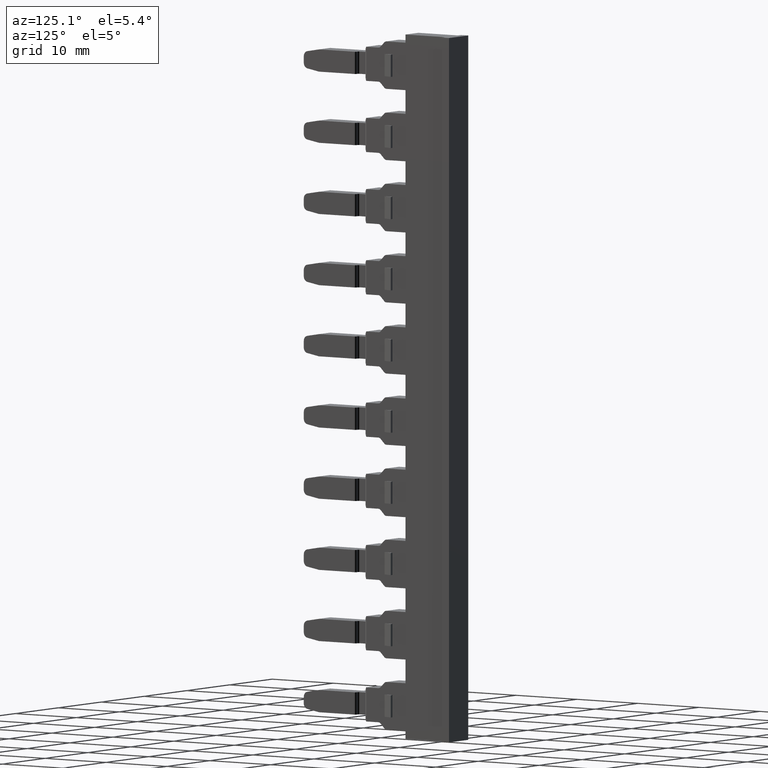
[diagram: clean part render]
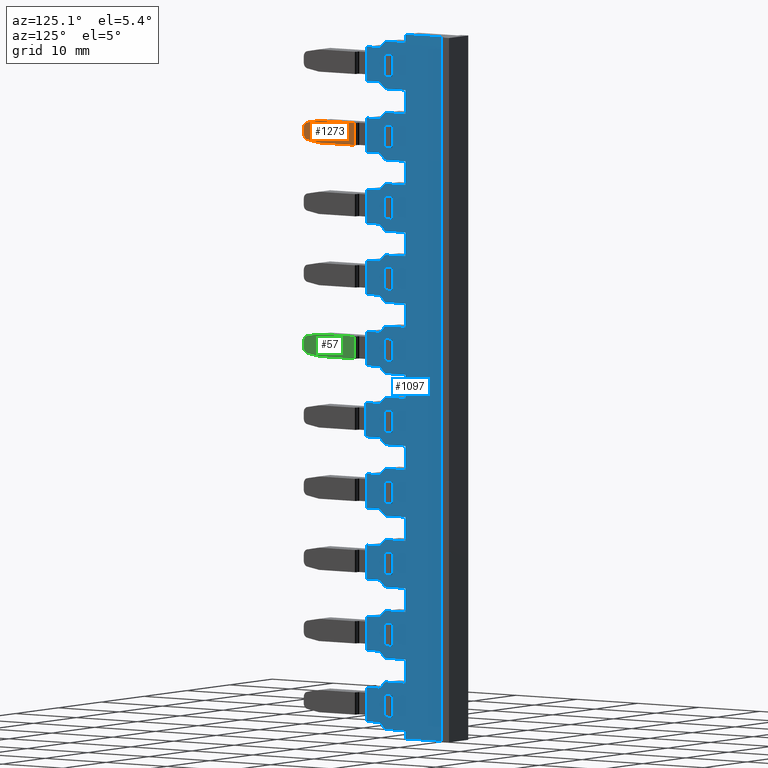
[diagram: same view with three faces highlighted in distinct colors, each labeled with its STEP entity id]
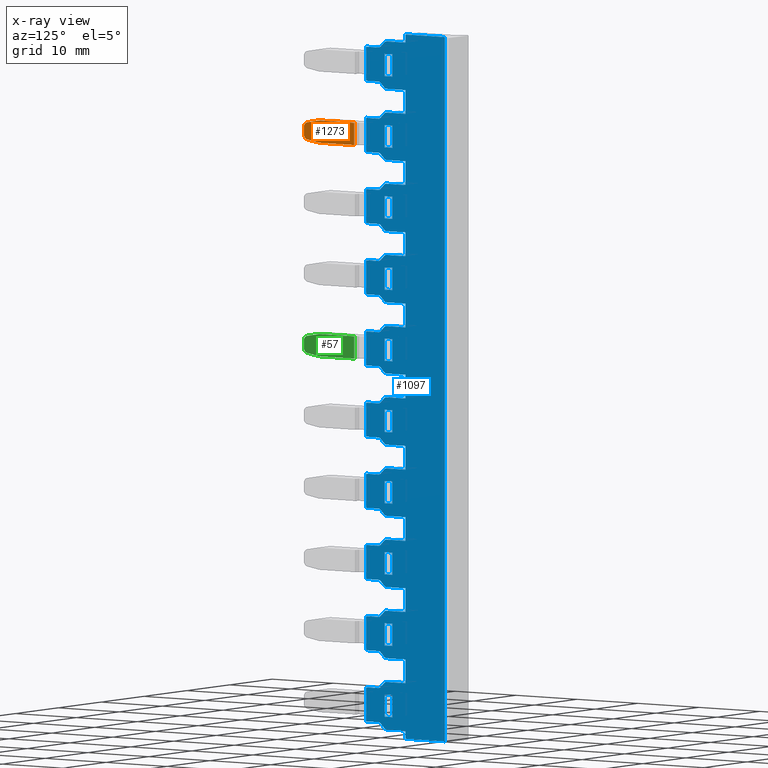
[diagram: x-ray of the same camera — body ghosted, the three highlighted faces saturated]
A machine part, auxiliary view with three faces highlighted in distinct colors.
The next image is the same camera in x-ray (body ghosted, the three faces saturated) — at least one of them is partly hidden behind the body in this view.
Their STEP definitions:

[orange] entity #1273 — the highlighted planar face has unit normal (-1, 0, -0).
#1273 = ADVANCED_FACE ( 'NONE', ( #8980 ), #8971, .F. ) ;
#1841 = CARTESIAN_POINT ( 'NONE',  ( 112.0207181399665800, 226.5069065328586100, 41.97844942780037800 ) ) ;
#1843 = DIRECTION ( 'NONE',  ( 1.982541115402047700E-014, -1.000000000000000000, 0.0000000000000000000 ) ) ;
#1844 = CARTESIAN_POINT ( 'NONE',  ( 112.0207181399668500, 238.6101602475987400, 43.00663662139601200 ) ) ;
#1864 = DIRECTION ( 'NONE',  ( -1.000000000000000000, -2.643655590711540000E-014, -7.193572994224081300E-015 ) ) ;
#1876 = LINE ( 'NONE', #1844, #10332 ) ;
#1878 = DIRECTION ( 'NONE',  ( -0.0000000000000000000, -1.000000000000000000, -2.594839121907101700E-014 ) ) ;
#2674 = ORIENTED_EDGE ( 'NONE', *, *, #4417, .F. ) ;
#2684 = ORIENTED_EDGE ( 'NONE', *, *, #4363, .F. ) ;
#2701 = ORIENTED_EDGE ( 'NONE', *, *, #4407, .T. ) ;
#2703 = ORIENTED_EDGE ( 'NONE', *, *, #4369, .T. ) ;
#2704 = ORIENTED_EDGE ( 'NONE', *, *, #4432, .T. ) ;
#4363 = EDGE_CURVE ( 'NONE', #11673, #11609, #10331, .T. ) ;
#4369 = EDGE_CURVE ( 'NONE', #11684, #11690, #1876, .T. ) ;
#4388 = EDGE_CURVE ( 'NONE', #11673, #11678, #4648, .T. ) ;
#4401 = EDGE_CURVE ( 'NONE', #11615, #11678, #10395, .T. ) ;
#4402 = EDGE_CURVE ( 'NONE', #11615, #11638, #4691, .T. ) ;
#4407 = EDGE_CURVE ( 'NONE', #11638, #11686, #4672, .T. ) ;
#4417 = EDGE_CURVE ( 'NONE', #11684, #11686, #4745, .T. ) ;
#4432 = EDGE_CURVE ( 'NONE', #11690, #11609, #4764, .T. ) ;
#4478 = ORIENTED_EDGE ( 'NONE', *, *, #4388, .T. ) ;
#4492 = ORIENTED_EDGE ( 'NONE', *, *, #4402, .T. ) ;
#4507 = ORIENTED_EDGE ( 'NONE', *, *, #4401, .F. ) ;
#4648 = LINE ( 'NONE', #4663, #10318 ) ;
#4656 = DIRECTION ( 'NONE',  ( 1.027851262480033000E-041, -3.887992316742691900E-028, -1.000000000000000000 ) ) ;
#4663 = CARTESIAN_POINT ( 'NONE',  ( 112.0207181399665900, 225.8069065328585900, 41.97844942780043500 ) ) ;
#4668 = CARTESIAN_POINT ( 'NONE',  ( 112.0207181399666800, 238.6101602475987400, 40.00663662139589900 ) ) ;
#4672 = LINE ( 'NONE', #4668, #10380 ) ;
#4679 = CARTESIAN_POINT ( 'NONE',  ( 112.0207181399666000, 226.5069065328586100, 41.03482381499119200 ) ) ;
#4680 = DIRECTION ( 'NONE',  ( -1.000000000000000000, -2.643655590711540000E-014, -7.193572994224081300E-015 ) ) ;
#4691 = LINE ( 'NONE', #4692, #10372 ) ;
#4692 = CARTESIAN_POINT ( 'NONE',  ( 112.0207181399666200, 228.3069065328586200, 40.00663662139595500 ) ) ;
#4700 = DIRECTION ( 'NONE',  ( -0.0000000000000000000, 0.9848077530122110200, -0.1736481776669129600 ) ) ;
#4707 = DIRECTION ( 'NONE',  ( 1.982541115402047700E-014, -1.000000000000000000, 0.0000000000000000000 ) ) ;
#4713 = DIRECTION ( 'NONE',  ( -0.0000000000000000000, 1.000000000000000000, -1.504573015594194000E-014 ) ) ;
#4716 = DIRECTION ( 'NONE',  ( 7.193572994225524900E-015, -5.441398086515932400E-029, -1.000000000000000000 ) ) ;
#4732 = CARTESIAN_POINT ( 'NONE',  ( 112.0207181399668500, 234.0815789080009200, 43.00663662139594100 ) ) ;
#4745 = LINE ( 'NONE', #4732, #10416 ) ;
#4761 = DIRECTION ( 'NONE',  ( -0.0000000000000000000, -0.9848077530121975800, -0.1736481776669893700 ) ) ;
#4764 = LINE ( 'NONE', #4793, #10396 ) ;
#4793 = CARTESIAN_POINT ( 'NONE',  ( 112.0207181399666600, 228.3069065328599300, 43.00663662139599100 ) ) ;
#5414 = CARTESIAN_POINT ( 'NONE',  ( 112.0207181399666200, 226.3853528084916000, 40.34545838788266500 ) ) ;
#5448 = CARTESIAN_POINT ( 'NONE',  ( 112.0207181399666600, 228.3069065328583600, 40.00663662139602600 ) ) ;
#5471 = CARTESIAN_POINT ( 'NONE',  ( 112.0207181399666200, 226.3853528084917500, 42.66781485490893300 ) ) ;
#5484 = CARTESIAN_POINT ( 'NONE',  ( 112.0207181399668500, 234.0815789080009200, 43.00663662139592000 ) ) ;
#5507 = CARTESIAN_POINT ( 'NONE',  ( 112.0207181399665900, 225.8069065328585900, 41.97844942780034900 ) ) ;
#5514 = CARTESIAN_POINT ( 'NONE',  ( 112.0207181399666000, 225.8069065328585900, 41.03482381499118500 ) ) ;
#5523 = CARTESIAN_POINT ( 'NONE',  ( 112.0207181399667900, 228.3069065328599000, 43.00663662139583500 ) ) ;
#5531 = CARTESIAN_POINT ( 'NONE',  ( 112.0207181399667700, 234.0815789080009200, 40.00663662139600500 ) ) ;
#8969 = DIRECTION ( 'NONE',  ( -3.142629004551419200E-014, -1.000000000000000000, 0.0000000000000000000 ) ) ;
#8971 = PLANE ( 'NONE',  #9837 ) ;
#8973 = CARTESIAN_POINT ( 'NONE',  ( 112.0207181399667900, 234.7827890380837600, 54.47574725072586000 ) ) ;
#8980 = FACE_OUTER_BOUND ( 'NONE', #10851, .T. ) ;
#9003 = DIRECTION ( 'NONE',  ( -1.000000000000000000, 3.142629004551419200E-014, -7.193572994225524900E-015 ) ) ;
#9837 = AXIS2_PLACEMENT_3D ( 'NONE', #8973, #9003, #8969 ) ;
#10318 = VECTOR ( 'NONE', #4656, 1000.000000000000000 ) ;
#10331 = CIRCLE ( 'NONE', #10339, 0.7000000000000061700 ) ;
#10332 = VECTOR ( 'NONE', #1878, 1000.000000000000000 ) ;
#10339 = AXIS2_PLACEMENT_3D ( 'NONE', #1841, #1864, #1843 ) ;
#10372 = VECTOR ( 'NONE', #4700, 1000.000000000000200 ) ;
#10374 = AXIS2_PLACEMENT_3D ( 'NONE', #4679, #4680, #4707 ) ;
#10380 = VECTOR ( 'NONE', #4713, 1000.000000000000000 ) ;
#10395 = CIRCLE ( 'NONE', #10374, 0.7000000000000061700 ) ;
#10396 = VECTOR ( 'NONE', #4761, 1000.000000000000100 ) ;
#10416 = VECTOR ( 'NONE', #4716, 1000.000000000000000 ) ;
#10851 = EDGE_LOOP ( 'NONE', ( #2674, #2703, #2704, #2684, #4478, #4507, #4492, #2701 ) ) ;
#11609 = VERTEX_POINT ( 'NONE', #5471 ) ;
#11615 = VERTEX_POINT ( 'NONE', #5414 ) ;
#11638 = VERTEX_POINT ( 'NONE', #5448 ) ;
#11673 = VERTEX_POINT ( 'NONE', #5507 ) ;
#11678 = VERTEX_POINT ( 'NONE', #5514 ) ;
#11684 = VERTEX_POINT ( 'NONE', #5484 ) ;
#11686 = VERTEX_POINT ( 'NONE', #5531 ) ;
#11690 = VERTEX_POINT ( 'NONE', #5523 ) ;

[blue] entity #1097 — the highlighted planar face has unit normal (1, 0, 0).
#1017 = EDGE_CURVE ( 'NONE', #10634, #10618, #11005, .T. ) ;
#1031 = EDGE_CURVE ( 'NONE', #10603, #10622, #11068, .T. ) ;
#1034 = EDGE_CURVE ( 'NONE', #10602, #10583, #11081, .T. ) ;
#1042 = EDGE_CURVE ( 'NONE', #10589, #10631, #11106, .T. ) ;
#1043 = EDGE_CURVE ( 'NONE', #10608, #10619, #11060, .T. ) ;
#1044 = EDGE_CURVE ( 'NONE', #10617, #10635, #11075, .T. ) ;
#1064 = EDGE_CURVE ( 'NONE', #10589, #10611, #11167, .T. ) ;
#1070 = EDGE_CURVE ( 'NONE', #10596, #10613, #11181, .T. ) ;
#1071 = EDGE_CURVE ( 'NONE', #10663, #10629, #11157, .T. ) ;
#1072 = EDGE_CURVE ( 'NONE', #10650, #10591, #7636, .T. ) ;
#1073 = EDGE_CURVE ( 'NONE', #10584, #10600, #11159, .T. ) ;
#1074 = EDGE_CURVE ( 'NONE', #10614, #10620, #11162, .T. ) ;
#1076 = EDGE_CURVE ( 'NONE', #10633, #10595, #11184, .T. ) ;
#1077 = EDGE_CURVE ( 'NONE', #10608, #10585, #7652, .T. ) ;
#1079 = EDGE_CURVE ( 'NONE', #10640, #10631, #11204, .T. ) ;
#1080 = EDGE_CURVE ( 'NONE', #10649, #10701, #11206, .T. ) ;
#1081 = EDGE_CURVE ( 'NONE', #10584, #10606, #7657, .T. ) ;
#1082 = EDGE_CURVE ( 'NONE', #10630, #10613, #7991, .T. ) ;
#1083 = EDGE_CURVE ( 'NONE', #10692, #10645, #11237, .T. ) ;
#1087 = EDGE_CURVE ( 'NONE', #10650, #10682, #11201, .T. ) ;
#1089 = EDGE_CURVE ( 'NONE', #10654, #10679, #11227, .T. ) ;
#1091 = EDGE_CURVE ( 'NONE', #10692, #10629, #11248, .T. ) ;
#1092 = EDGE_CURVE ( 'NONE', #10699, #10591, #11295, .T. ) ;
#1094 = EDGE_CURVE ( 'NONE', #10607, #10668, #7578, .T. ) ;
#1096 = EDGE_CURVE ( 'NONE', #10630, #10616, #11284, .T. ) ;
#1097 = ADVANCED_FACE ( 'NONE', ( #11253, #11264, #11298, #11266, #11272, #11252, #11271, #11254, #11293, #11299, #11275 ), #11279, .T. ) ;
#1099 = EDGE_CURVE ( 'NONE', #10620, #10609, #11289, .T. ) ;
#1101 = EDGE_CURVE ( 'NONE', #10615, #10621, #11257, .T. ) ;
#1104 = EDGE_CURVE ( 'NONE', #10612, #10598, #11315, .T. ) ;
#1105 = EDGE_CURVE ( 'NONE', #10579, #10626, #11316, .T. ) ;
#1107 = EDGE_CURVE ( 'NONE', #10649, #10645, #9752, .T. ) ;
#1108 = EDGE_CURVE ( 'NONE', #10654, #10701, #9748, .T. ) ;
#1109 = EDGE_CURVE ( 'NONE', #10586, #10667, #9768, .T. ) ;
#1110 = EDGE_CURVE ( 'NONE', #10607, #10667, #11325, .T. ) ;
#1112 = EDGE_CURVE ( 'NONE', #10593, #10609, #9789, .T. ) ;
#1113 = EDGE_CURVE ( 'NONE', #10610, #10595, #9755, .T. ) ;
#1114 = EDGE_CURVE ( 'NONE', #10636, #10638, #11365, .T. ) ;
#1115 = EDGE_CURVE ( 'NONE', #10593, #10606, #11368, .T. ) ;
#1117 = EDGE_CURVE ( 'NONE', #10583, #10598, #11353, .T. ) ;
#1118 = EDGE_CURVE ( 'NONE', #10626, #10585, #11355, .T. ) ;
#1119 = EDGE_CURVE ( 'NONE', #10633, #10611, #9792, .T. ) ;
#1122 = EDGE_CURVE ( 'NONE', #10639, #10579, #11393, .T. ) ;
#1124 = EDGE_CURVE ( 'NONE', #10601, #10668, #11364, .T. ) ;
#1125 = EDGE_CURVE ( 'NONE', #10663, #10682, #9756, .T. ) ;
#1126 = EDGE_CURVE ( 'NONE', #10639, #10616, #9754, .T. ) ;
#1127 = EDGE_CURVE ( 'NONE', #10596, #10600, #11348, .T. ) ;
#1128 = EDGE_CURVE ( 'NONE', #10586, #10614, #11405, .T. ) ;
#1129 = EDGE_CURVE ( 'NONE', #10640, #10619, #9796, .T. ) ;
#1130 = EDGE_CURVE ( 'NONE', #10601, #10679, #11442, .T. ) ;
#1132 = EDGE_CURVE ( 'NONE', #10610, #10602, #11429, .T. ) ;
#1854 = CARTESIAN_POINT ( 'NONE',  ( 112.2279176201154100, 239.5101602475984400, 15.90663662139566600 ) ) ;
#1872 = CARTESIAN_POINT ( 'NONE',  ( 112.2279176201156500, 236.1815789079991800, -8.793363378604263800 ) ) ;
#2310 = CARTESIAN_POINT ( 'NONE',  ( 112.2279176201154300, 239.1566068570054700, 15.76019001198886800 ) ) ;
#2712 = ORIENTED_EDGE ( 'NONE', *, *, #4061, .F. ) ;
#2713 = ORIENTED_EDGE ( 'NONE', *, *, #4101, .F. ) ;
#2714 = ORIENTED_EDGE ( 'NONE', *, *, #4033, .T. ) ;
#2716 = ORIENTED_EDGE ( 'NONE', *, *, #4065, .T. ) ;
#2718 = ORIENTED_EDGE ( 'NONE', *, *, #4072, .F. ) ;
#2722 = ORIENTED_EDGE ( 'NONE', *, *, #4098, .T. ) ;
#2724 = ORIENTED_EDGE ( 'NONE', *, *, #4006, .F. ) ;
#2729 = ORIENTED_EDGE ( 'NONE', *, *, #4047, .F. ) ;
#2735 = ORIENTED_EDGE ( 'NONE', *, *, #4054, .T. ) ;
#2737 = ORIENTED_EDGE ( 'NONE', *, *, #4080, .F. ) ;
#2738 = ORIENTED_EDGE ( 'NONE', *, *, #4118, .F. ) ;
#2744 = ORIENTED_EDGE ( 'NONE', *, *, #4056, .F. ) ;
#2745 = ORIENTED_EDGE ( 'NONE', *, *, #4108, .F. ) ;
#2746 = ORIENTED_EDGE ( 'NONE', *, *, #4104, .F. ) ;
#2748 = ORIENTED_EDGE ( 'NONE', *, *, #4005, .T. ) ;
#2749 = ORIENTED_EDGE ( 'NONE', *, *, #4053, .T. ) ;
#2750 = ORIENTED_EDGE ( 'NONE', *, *, #4124, .T. ) ;
#2751 = ORIENTED_EDGE ( 'NONE', *, *, #4055, .T. ) ;
#2755 = ORIENTED_EDGE ( 'NONE', *, *, #4070, .F. ) ;
#2762 = ORIENTED_EDGE ( 'NONE', *, *, #4091, .F. ) ;
#2763 = ORIENTED_EDGE ( 'NONE', *, *, #4046, .T. ) ;
#2765 = ORIENTED_EDGE ( 'NONE', *, *, #4043, .F. ) ;
#2766 = ORIENTED_EDGE ( 'NONE', *, *, #4063, .T. ) ;
#2767 = ORIENTED_EDGE ( 'NONE', *, *, #4122, .T. ) ;
#2768 = ORIENTED_EDGE ( 'NONE', *, *, #4066, .T. ) ;
#2769 = ORIENTED_EDGE ( 'NONE', *, *, #4092, .T. ) ;
#2770 = ORIENTED_EDGE ( 'NONE', *, *, #4095, .T. ) ;
#2771 = ORIENTED_EDGE ( 'NONE', *, *, #4067, .F. ) ;
#2772 = ORIENTED_EDGE ( 'NONE', *, *, #4102, .T. ) ;
#2798 = ORIENTED_EDGE ( 'NONE', *, *, #4071, .F. ) ;
#3981 = EDGE_CURVE ( 'NONE', #10670, #10674, #9750, .T. ) ;
#3982 = EDGE_CURVE ( 'NONE', #10603, #10689, #9012, .T. ) ;
#3983 = EDGE_CURVE ( 'NONE', #10634, #10592, #9050, .T. ) ;
#3984 = EDGE_CURVE ( 'NONE', #10698, #10702, #9035, .T. ) ;
#3985 = EDGE_CURVE ( 'NONE', #10577, #10635, #9045, .T. ) ;
#3986 = EDGE_CURVE ( 'NONE', #10590, #10658, #9029, .T. ) ;
#3987 = EDGE_CURVE ( 'NONE', #10580, #10671, #9058, .T. ) ;
#3988 = EDGE_CURVE ( 'NONE', #10669, #10618, #9052, .T. ) ;
#3989 = EDGE_CURVE ( 'NONE', #10684, #10697, #9051, .T. ) ;
#3990 = EDGE_CURVE ( 'NONE', #10691, #10658, #9055, .T. ) ;
#3991 = EDGE_CURVE ( 'NONE', #10659, #10678, #9056, .T. ) ;
#3992 = EDGE_CURVE ( 'NONE', #10681, #10638, #9048, .T. ) ;
#3993 = EDGE_CURVE ( 'NONE', #10700, #10664, #9879, .T. ) ;
#3994 = EDGE_CURVE ( 'NONE', #10672, #10666, #9890, .T. ) ;
#3995 = EDGE_CURVE ( 'NONE', #10604, #10690, #9020, .T. ) ;
#3996 = EDGE_CURVE ( 'NONE', #10691, #10671, #9876, .T. ) ;
#3997 = EDGE_CURVE ( 'NONE', #10659, #10683, #9921, .T. ) ;
#3998 = EDGE_CURVE ( 'NONE', #10580, #10680, #9895, .T. ) ;
#3999 = EDGE_CURVE ( 'NONE', #10675, #10689, #9923, .T. ) ;
#4000 = EDGE_CURVE ( 'NONE', #10587, #10688, #9064, .T. ) ;
#4001 = EDGE_CURVE ( 'NONE', #10577, #10697, #9875, .T. ) ;
#4002 = EDGE_CURVE ( 'NONE', #10662, #10746, #9040, .T. ) ;
#4003 = EDGE_CURVE ( 'NONE', #10685, #10666, #9091, .T. ) ;
#4004 = EDGE_CURVE ( 'NONE', #10743, #10711, #9907, .T. ) ;
#4005 = EDGE_CURVE ( 'NONE', #10756, #10723, #9094, .T. ) ;
#4006 = EDGE_CURVE ( 'NONE', #10720, #10716, #9085, .T. ) ;
#4007 = EDGE_CURVE ( 'NONE', #10651, #10751, #9915, .T. ) ;
#4008 = EDGE_CURVE ( 'NONE', #10652, #10581, #9084, .T. ) ;
#4009 = EDGE_CURVE ( 'NONE', #10615, #10680, #9100, .T. ) ;
#4010 = EDGE_CURVE ( 'NONE', #10669, #10665, #9898, .T. ) ;
#4011 = EDGE_CURVE ( 'NONE', #10590, #10694, #9103, .T. ) ;
#4012 = EDGE_CURVE ( 'NONE', #10676, #10715, #9916, .T. ) ;
#4013 = EDGE_CURVE ( 'NONE', #10670, #10702, #9074, .T. ) ;
#4014 = EDGE_CURVE ( 'NONE', #10582, #10660, #9918, .T. ) ;
#4015 = EDGE_CURVE ( 'NONE', #10627, #10621, #9142, .T. ) ;
#4016 = EDGE_CURVE ( 'NONE', #10643, #10674, #9121, .T. ) ;
#4017 = EDGE_CURVE ( 'NONE', #10681, #10581, #9899, .T. ) ;
#4018 = EDGE_CURVE ( 'NONE', #10677, #10642, #9131, .T. ) ;
#4019 = EDGE_CURVE ( 'NONE', #10677, #10748, #9909, .T. ) ;
#4020 = EDGE_CURVE ( 'NONE', #10644, #10686, #9110, .T. ) ;
#4021 = EDGE_CURVE ( 'NONE', #10587, #10657, #9878, .T. ) ;
#4022 = EDGE_CURVE ( 'NONE', #10764, #10727, #9148, .T. ) ;
#4023 = EDGE_CURVE ( 'NONE', #10648, #10748, #9138, .T. ) ;
#4024 = EDGE_CURVE ( 'NONE', #10617, #10578, #9113, .T. ) ;
#4025 = EDGE_CURVE ( 'NONE', #10676, #10767, #9116, .T. ) ;
#4026 = EDGE_CURVE ( 'NONE', #10706, #10707, #9963, .T. ) ;
#4027 = EDGE_CURVE ( 'NONE', #10643, #10592, #9978, .T. ) ;
#4028 = EDGE_CURVE ( 'NONE', #10724, #10715, #9153, .T. ) ;
#4029 = EDGE_CURVE ( 'NONE', #10685, #10578, #9949, .T. ) ;
#4030 = EDGE_CURVE ( 'NONE', #10652, #10656, #9972, .T. ) ;
#4031 = EDGE_CURVE ( 'NONE', #10612, #10736, #9173, .T. ) ;
#4032 = EDGE_CURVE ( 'NONE', #10627, #10642, #9955, .T. ) ;
#4033 = EDGE_CURVE ( 'NONE', #10722, #10714, #9168, .T. ) ;
#4034 = EDGE_CURVE ( 'NONE', #10758, #10730, #9160, .T. ) ;
#4035 = EDGE_CURVE ( 'NONE', #10743, #10695, #9171, .T. ) ;
#4036 = EDGE_CURVE ( 'NONE', #10700, #10646, #8601, .T. ) ;
#4037 = EDGE_CURVE ( 'NONE', #10582, #10665, #8616, .T. ) ;
#4038 = EDGE_CURVE ( 'NONE', #10693, #10690, #8599, .T. ) ;
#4039 = EDGE_CURVE ( 'NONE', #10699, #10678, #8595, .T. ) ;
#4040 = EDGE_CURVE ( 'NONE', #10684, #10694, #9980, .T. ) ;
#4041 = EDGE_CURVE ( 'NONE', #10604, #10657, #9162, .T. ) ;
#4042 = EDGE_CURVE ( 'NONE', #10693, #10646, #9979, .T. ) ;
#4043 = EDGE_CURVE ( 'NONE', #10761, #10762, #8573, .T. ) ;
#4044 = EDGE_CURVE ( 'NONE', #10647, #10725, #8575, .T. ) ;
#4045 = EDGE_CURVE ( 'NONE', #10672, #10686, #8559, .T. ) ;
#4046 = EDGE_CURVE ( 'NONE', #10735, #10703, #8588, .T. ) ;
#4047 = EDGE_CURVE ( 'NONE', #10661, #10763, #8634, .T. ) ;
#4048 = EDGE_CURVE ( 'NONE', #10636, #10664, #8582, .T. ) ;
#4049 = EDGE_CURVE ( 'NONE', #10698, #10656, #8562, .T. ) ;
#4050 = EDGE_CURVE ( 'NONE', #10644, #10660, #8590, .T. ) ;
#4051 = EDGE_CURVE ( 'NONE', #10648, #10767, #8724, .T. ) ;
#4052 = EDGE_CURVE ( 'NONE', #10675, #10683, #8883, .T. ) ;
#4053 = EDGE_CURVE ( 'NONE', #10653, #10756, #5759, .T. ) ;
#4054 = EDGE_CURVE ( 'NONE', #10721, #10760, #5734, .T. ) ;
#4055 = EDGE_CURVE ( 'NONE', #10761, #10712, #5746, .T. ) ;
#4056 = EDGE_CURVE ( 'NONE', #10653, #10755, #5732, .T. ) ;
#4057 = EDGE_CURVE ( 'NONE', #10687, #10622, #5747, .T. ) ;
#4058 = EDGE_CURVE ( 'NONE', #10744, #10707, #5768, .T. ) ;
#4059 = EDGE_CURVE ( 'NONE', #10706, #10751, #5748, .T. ) ;
#4060 = EDGE_CURVE ( 'NONE', #10687, #10688, #9946, .T. ) ;
#4061 = EDGE_CURVE ( 'NONE', #10759, #10729, #5760, .T. ) ;
#4063 = EDGE_CURVE ( 'NONE', #10746, #10726, #5741, .T. ) ;
#4064 = EDGE_CURVE ( 'NONE', #10655, #10695, #9956, .T. ) ;
#4065 = EDGE_CURVE ( 'NONE', #10728, #10742, #5754, .T. ) ;
#4066 = EDGE_CURVE ( 'NONE', #10720, #10745, #5773, .T. ) ;
#4067 = EDGE_CURVE ( 'NONE', #10732, #10765, #5764, .T. ) ;
#4070 = EDGE_CURVE ( 'NONE', #10728, #10768, #5786, .T. ) ;
#4071 = EDGE_CURVE ( 'NONE', #10768, #10696, #5819, .T. ) ;
#4072 = EDGE_CURVE ( 'NONE', #10716, #10733, #5820, .T. ) ;
#4078 = EDGE_CURVE ( 'NONE', #10766, #10647, #5802, .T. ) ;
#4079 = EDGE_CURVE ( 'NONE', #10731, #10713, #5787, .T. ) ;
#4080 = EDGE_CURVE ( 'NONE', #10729, #10760, #5817, .T. ) ;
#4081 = EDGE_CURVE ( 'NONE', #10758, #10764, #5796, .T. ) ;
#4082 = EDGE_CURVE ( 'NONE', #10655, #10737, #5806, .T. ) ;
#4084 = EDGE_CURVE ( 'NONE', #10651, #10713, #5793, .T. ) ;
#4086 = EDGE_CURVE ( 'NONE', #10734, #10719, #5831, .T. ) ;
#4087 = EDGE_CURVE ( 'NONE', #10734, #10737, #5829, .T. ) ;
#4090 = EDGE_CURVE ( 'NONE', #10724, #10719, #9997, .T. ) ;
#4091 = EDGE_CURVE ( 'NONE', #10755, #10723, #5833, .T. ) ;
#4092 = EDGE_CURVE ( 'NONE', #10745, #10733, #5830, .T. ) ;
#4093 = EDGE_CURVE ( 'NONE', #10731, #10711, #5860, .T. ) ;
#4095 = EDGE_CURVE ( 'NONE', #10712, #10717, #5859, .T. ) ;
#4096 = EDGE_CURVE ( 'NONE', #10730, #10727, #5824, .T. ) ;
#4098 = EDGE_CURVE ( 'NONE', #10759, #10721, #5847, .T. ) ;
#4099 = EDGE_CURVE ( 'NONE', #10744, #10736, #5872, .T. ) ;
#4101 = EDGE_CURVE ( 'NONE', #10722, #10732, #5884, .T. ) ;
#4102 = EDGE_CURVE ( 'NONE', #10714, #10765, #5846, .T. ) ;
#4103 = EDGE_CURVE ( 'NONE', #10673, #10725, #5913, .T. ) ;
#4104 = EDGE_CURVE ( 'NONE', #10763, #10703, #5852, .T. ) ;
#4108 = EDGE_CURVE ( 'NONE', #10762, #10717, #5915, .T. ) ;
#4111 = EDGE_CURVE ( 'NONE', #10662, #10641, #5874, .T. ) ;
#4117 = EDGE_CURVE ( 'NONE', #10766, #10673, #5955, .T. ) ;
#4118 = EDGE_CURVE ( 'NONE', #10641, #10726, #5919, .T. ) ;
#4122 = EDGE_CURVE ( 'NONE', #10661, #10735, #5947, .T. ) ;
#4124 = EDGE_CURVE ( 'NONE', #10742, #10696, #5933, .T. ) ;
#4523 = ORIENTED_EDGE ( 'NONE', *, *, #4081, .T. ) ;
#4525 = ORIENTED_EDGE ( 'NONE', *, *, #4028, .F. ) ;
#4526 = ORIENTED_EDGE ( 'NONE', *, *, #4079, .T. ) ;
#4527 = ORIENTED_EDGE ( 'NONE', *, *, #4086, .F. ) ;
#4528 = ORIENTED_EDGE ( 'NONE', *, *, #4078, .F. ) ;
#4529 = ORIENTED_EDGE ( 'NONE', *, *, #4026, .T. ) ;
#4531 = ORIENTED_EDGE ( 'NONE', *, *, #4082, .F. ) ;
#4532 = ORIENTED_EDGE ( 'NONE', *, *, #4064, .T. ) ;
#4538 = ORIENTED_EDGE ( 'NONE', *, *, #4035, .F. ) ;
#4539 = ORIENTED_EDGE ( 'NONE', *, *, #4007, .T. ) ;
#4540 = ORIENTED_EDGE ( 'NONE', *, *, #4084, .F. ) ;
#4543 = ORIENTED_EDGE ( 'NONE', *, *, #4096, .F. ) ;
#4544 = ORIENTED_EDGE ( 'NONE', *, *, #4059, .F. ) ;
#4548 = ORIENTED_EDGE ( 'NONE', *, *, #4044, .F. ) ;
#4549 = ORIENTED_EDGE ( 'NONE', *, *, #4087, .T. ) ;
#4552 = ORIENTED_EDGE ( 'NONE', *, *, #4117, .T. ) ;
#4553 = ORIENTED_EDGE ( 'NONE', *, *, #4002, .T. ) ;
#4554 = ORIENTED_EDGE ( 'NONE', *, *, #4004, .T. ) ;
#4556 = ORIENTED_EDGE ( 'NONE', *, *, #4031, .F. ) ;
#4558 = ORIENTED_EDGE ( 'NONE', *, *, #4093, .F. ) ;
#4560 = ORIENTED_EDGE ( 'NONE', *, *, #4090, .T. ) ;
#4561 = ORIENTED_EDGE ( 'NONE', *, *, #4034, .F. ) ;
#4564 = ORIENTED_EDGE ( 'NONE', *, *, #4022, .T. ) ;
#4565 = ORIENTED_EDGE ( 'NONE', *, *, #4103, .T. ) ;
#4569 = ORIENTED_EDGE ( 'NONE', *, *, #4058, .F. ) ;
#4570 = ORIENTED_EDGE ( 'NONE', *, *, #4099, .T. ) ;
#4580 = ORIENTED_EDGE ( 'NONE', *, *, #4111, .F. ) ;
#4652 = CARTESIAN_POINT ( 'NONE',  ( 112.2279176201155900, 239.1566068570055800, -9.546916769197521200 ) ) ;
#5065 = CARTESIAN_POINT ( 'NONE',  ( 112.2279176201156000, 239.5101602475986100, -12.89336337860433300 ) ) ;
#5070 = CARTESIAN_POINT ( 'NONE',  ( 112.2279176201155500, 239.5101602475988600, -9.693363378604262300 ) ) ;
#5071 = CARTESIAN_POINT ( 'NONE',  ( 112.2279176201151800, 242.6435672046340000, 44.70663662139566000 ) ) ;
#5112 = CARTESIAN_POINT ( 'NONE',  ( 112.2279176201155300, 242.6435672046341400, -12.89336337860433300 ) ) ;
#5114 = CARTESIAN_POINT ( 'NONE',  ( 112.2279176201152100, 239.5101602475985800, 38.30663662139573200 ) ) ;
#5115 = CARTESIAN_POINT ( 'NONE',  ( 112.2279176201151500, 242.6435672046340000, 38.30663662139570400 ) ) ;
#5116 = CARTESIAN_POINT ( 'NONE',  ( 112.2279176201153200, 238.5495000758188300, 34.35308323080241200 ) ) ;
#5117 = CARTESIAN_POINT ( 'NONE',  ( 112.2279176201149100, 249.1101602475987400, 55.40663662139579100 ) ) ;
#5118 = CARTESIAN_POINT ( 'NONE',  ( 112.2279176201154800, 239.5101602475988000, -0.09336337860426507900 ) ) ;
#5119 = CARTESIAN_POINT ( 'NONE',  ( 112.2279176201152100, 238.1959466852256400, 48.80663662139586700 ) ) ;
#5120 = CARTESIAN_POINT ( 'NONE',  ( 112.2279176201152800, 238.1959466852256900, 39.20663662139560300 ) ) ;
#5121 = CARTESIAN_POINT ( 'NONE',  ( 112.2279176201155900, 238.5495000758190500, -4.046916769197585100 ) ) ;
#5122 = CARTESIAN_POINT ( 'NONE',  ( 112.2279176201151900, 239.1566068570053000, 48.05308323080264200 ) ) ;
#5123 = CARTESIAN_POINT ( 'NONE',  ( 112.2279176201154300, 242.6435672046342200, -0.09336337860429283500 ) ) ;
#5124 = CARTESIAN_POINT ( 'NONE',  ( 112.2279176201151900, 239.5101602475982600, 44.70663662139566700 ) ) ;
#5126 = CARTESIAN_POINT ( 'NONE',  ( 112.2279176201152500, 238.5495000758187700, 43.95308323080240600 ) ) ;
#5127 = CARTESIAN_POINT ( 'NONE',  ( 112.2279176201153600, 242.6435672046341700, 9.506636621395705000 ) ) ;
#5129 = CARTESIAN_POINT ( 'NONE',  ( 112.2279176201154100, 240.5101602475988600, 14.20663662139502000 ) ) ;
#5131 = CARTESIAN_POINT ( 'NONE',  ( 112.2279176201151400, 239.5101602475985800, 47.90663662139588300 ) ) ;
#5132 = CARTESIAN_POINT ( 'NONE',  ( 112.2279176201152500, 236.1815789079985000, 34.20663662139568100 ) ) ;
#5133 = CARTESIAN_POINT ( 'NONE',  ( 112.2279176201157000, 239.1566068570056700, -22.63980998801112700 ) ) ;
#5134 = CARTESIAN_POINT ( 'NONE',  ( 112.2279176201155200, 239.1566068570055300, 0.05308323080247673300 ) ) ;
#5135 = CARTESIAN_POINT ( 'NONE',  ( 112.2279176201154100, 242.6435672046341400, 6.306636621395671900 ) ) ;
#5136 = CARTESIAN_POINT ( 'NONE',  ( 112.2279176201156800, 239.5101602475986600, -22.49336337860433200 ) ) ;
#5137 = CARTESIAN_POINT ( 'NONE',  ( 112.2279176201153900, 236.1815789079986100, 15.00663662139568200 ) ) ;
#5138 = CARTESIAN_POINT ( 'NONE',  ( 112.2279176201153900, 238.1959466852257200, 24.60663662139577900 ) ) ;
#5139 = CARTESIAN_POINT ( 'NONE',  ( 112.2279176201151400, 239.5101602475982600, 54.30663662139582500 ) ) ;
#5140 = CARTESIAN_POINT ( 'NONE',  ( 112.2279176201155600, 242.6435672046343400, -19.29336337860429400 ) ) ;
#5142 = CARTESIAN_POINT ( 'NONE',  ( 112.2279176201153200, 242.6435672046341100, 25.50663662139566100 ) ) ;
#5144 = CARTESIAN_POINT ( 'NONE',  ( 112.2279176201150500, 242.6435672046340200, 55.40663662139578300 ) ) ;
#5145 = CARTESIAN_POINT ( 'NONE',  ( 112.2279176201152600, 239.5101602475983200, 35.10663662139566600 ) ) ;
#5146 = CARTESIAN_POINT ( 'NONE',  ( 112.2279176201151800, 238.1959466852255800, 53.40663662139601100 ) ) ;
#5147 = CARTESIAN_POINT ( 'NONE',  ( 112.2279176201154900, 249.1101602475992000, -39.59336337860425200 ) ) ;
#5148 = CARTESIAN_POINT ( 'NONE',  ( 112.2279176201154500, 238.5495000758189400, 15.15308323080240900 ) ) ;
#5150 = CARTESIAN_POINT ( 'NONE',  ( 112.2279176201152500, 242.6435672046340500, 35.10663662139565800 ) ) ;
#5151 = CARTESIAN_POINT ( 'NONE',  ( 112.2279176201152200, 239.1566068570053000, 44.56019001198886500 ) ) ;
#5152 = CARTESIAN_POINT ( 'NONE',  ( 112.2279176201154600, 242.6435672046341400, -3.293363378604329000 ) ) ;
#5153 = CARTESIAN_POINT ( 'NONE',  ( 112.2279176201151900, 238.5495000758189400, 48.66019001198910800 ) ) ;
#5154 = CARTESIAN_POINT ( 'NONE',  ( 112.2279176201156000, 242.6435672046341400, -22.49336337860433200 ) ) ;
#5155 = CARTESIAN_POINT ( 'NONE',  ( 112.2279176201151100, 236.1815789079985300, 53.40663662139586900 ) ) ;
#5156 = CARTESIAN_POINT ( 'NONE',  ( 112.2279176201155900, 236.1815789079987800, -13.79336337860431700 ) ) ;
#5157 = CARTESIAN_POINT ( 'NONE',  ( 112.2279176201152500, 239.1566068570053000, 38.45308323080247000 ) ) ;
#5158 = CARTESIAN_POINT ( 'NONE',  ( 112.2279176201151200, 242.6435672046340000, 54.30663662139582500 ) ) ;
#5159 = CARTESIAN_POINT ( 'NONE',  ( 112.2279176201152500, 238.1959466852256100, 43.80663662139577500 ) ) ;
#5160 = CARTESIAN_POINT ( 'NONE',  ( 112.2279176201153100, 236.1815789079989000, 39.20663662139573100 ) ) ;
#5161 = CARTESIAN_POINT ( 'NONE',  ( 112.2279176201156600, 239.1566068570056100, -19.14691676919752400 ) ) ;
#5162 = CARTESIAN_POINT ( 'NONE',  ( 112.2279176201151400, 239.1566068570053000, 54.16019001198904400 ) ) ;
#5164 = CARTESIAN_POINT ( 'NONE',  ( 112.2279176201151800, 236.1815789079984700, 43.80663662139568300 ) ) ;
#5165 = CARTESIAN_POINT ( 'NONE',  ( 112.2279176201152900, 242.6435672046341100, 19.10663662139570500 ) ) ;
#5166 = CARTESIAN_POINT ( 'NONE',  ( 112.2279176201152600, 238.5495000758190300, 39.06019001198885800 ) ) ;
#5167 = CARTESIAN_POINT ( 'NONE',  ( 112.2279176201154900, 242.6435672046342800, -9.693363378604290800 ) ) ;
#5168 = CARTESIAN_POINT ( 'NONE',  ( 112.2279176201153300, 242.6435672046341400, 15.90663662139567000 ) ) ;
#5171 = CARTESIAN_POINT ( 'NONE',  ( 112.2279176201154900, 239.1566068570055300, 6.160190011988871300 ) ) ;
#5172 = CARTESIAN_POINT ( 'NONE',  ( 112.2279176201151200, 242.6435672046340000, 47.90663662139584700 ) ) ;
#5173 = CARTESIAN_POINT ( 'NONE',  ( 112.2279176201152200, 236.1815789079988700, 48.80663662139587400 ) ) ;
#5175 = CARTESIAN_POINT ( 'NONE',  ( 112.2279176201151600, 238.5495000758187100, 53.55308323080259900 ) ) ;
#5176 = CARTESIAN_POINT ( 'NONE',  ( 112.2279176201154600, 239.5101602475984900, 6.306636621395668400 ) ) ;
#5177 = CARTESIAN_POINT ( 'NONE',  ( 112.2279176201154500, 238.1959466852257800, 15.00663662139578000 ) ) ;
#5178 = CARTESIAN_POINT ( 'NONE',  ( 112.2279176201154200, 240.5101602475988600, 11.20663662139501900 ) ) ;
#5179 = CARTESIAN_POINT ( 'NONE',  ( 112.2279176201154200, 239.5101602475987500, 9.506636621395731600 ) ) ;
#5180 = CARTESIAN_POINT ( 'NONE',  ( 112.2279176201156200, 239.5101602475989200, -19.29336337860426600 ) ) ;
#5181 = CARTESIAN_POINT ( 'NONE',  ( 112.2279176201154200, 238.1959466852258100, 20.00663662139560700 ) ) ;
#5182 = CARTESIAN_POINT ( 'NONE',  ( 112.2279176201154100, 238.5495000758191400, 19.86019001198885900 ) ) ;
#5183 = CARTESIAN_POINT ( 'NONE',  ( 112.2279176201152800, 239.5101602475986300, 28.70663662139573400 ) ) ;
#5184 = CARTESIAN_POINT ( 'NONE',  ( 112.2279176201156600, 236.1815789079988400, -23.39336337860431300 ) ) ;
#5185 = CARTESIAN_POINT ( 'NONE',  ( 112.2279176201155200, 238.5495000758190000, 5.553083230802411800 ) ) ;
#5186 = CARTESIAN_POINT ( 'NONE',  ( 112.2279176201152900, 239.1566068570053600, 34.96019001198887100 ) ) ;
#5187 = CARTESIAN_POINT ( 'NONE',  ( 112.2279176201153500, 240.5101602475988000, 20.80663662139501800 ) ) ;
#5188 = CARTESIAN_POINT ( 'NONE',  ( 112.2279176201154500, 236.1815789079990100, 20.00663662139573200 ) ) ;
#5189 = CARTESIAN_POINT ( 'NONE',  ( 112.2279176201156800, 240.5101602475990900, -24.19336337860497500 ) ) ;
#5190 = CARTESIAN_POINT ( 'NONE',  ( 112.2279176201156200, 238.1959466852259800, -8.793363378604389900 ) ) ;
#5191 = CARTESIAN_POINT ( 'NONE',  ( 112.2279176201153600, 239.1566068570054100, 25.36019001198887000 ) ) ;
#5192 = CARTESIAN_POINT ( 'NONE',  ( 112.2279176201153200, 239.1566068570053600, 28.85308323080247600 ) ) ;
#5193 = CARTESIAN_POINT ( 'NONE',  ( 112.2279176201154800, 240.5101602475989200, 1.606636621395020300 ) ) ;
#5194 = CARTESIAN_POINT ( 'NONE',  ( 112.2279176201156800, 238.5495000758193400, -18.53980998801114300 ) ) ;
#5195 = CARTESIAN_POINT ( 'NONE',  ( 112.2279176201158300, 238.1959466852261500, -37.59336337860438700 ) ) ;
#5196 = CARTESIAN_POINT ( 'NONE',  ( 112.2279176201155600, 239.1566068570055800, -3.439809988011126100 ) ) ;
#5197 = CARTESIAN_POINT ( 'NONE',  ( 112.2279176201155300, 238.5495000758192200, 0.6601900119888592900 ) ) ;
#5198 = CARTESIAN_POINT ( 'NONE',  ( 112.2279176201157500, 239.5101602475987200, -32.09336337860433000 ) ) ;
#5199 = CARTESIAN_POINT ( 'NONE',  ( 112.2279176201156600, 238.5495000758191100, -13.64691676919759000 ) ) ;
#5200 = CARTESIAN_POINT ( 'NONE',  ( 112.2279176201157300, 239.2101602475993000, -27.19336337860497800 ) ) ;
#5201 = CARTESIAN_POINT ( 'NONE',  ( 112.2279176201153900, 239.1566068570054100, 19.25308323080247400 ) ) ;
#5202 = CARTESIAN_POINT ( 'NONE',  ( 112.2279176201155200, 238.1959466852258300, 5.406636621395781700 ) ) ;
#5203 = CARTESIAN_POINT ( 'NONE',  ( 112.2279176201153800, 236.1815789079989500, 29.60663662139573300 ) ) ;
#5204 = CARTESIAN_POINT ( 'NONE',  ( 112.2279176201155900, 238.1959466852258900, -4.193363378604216200 ) ) ;
#5205 = CARTESIAN_POINT ( 'NONE',  ( 112.2279176201153500, 238.1959466852257500, 29.60663662139560900 ) ) ;
#5206 = CARTESIAN_POINT ( 'NONE',  ( 112.2279176201157200, 236.1815789079992400, -18.39336337860427100 ) ) ;
#5207 = CARTESIAN_POINT ( 'NONE',  ( 112.2279176201153900, 238.5495000758188800, 24.75308323080241000 ) ) ;
#5208 = CARTESIAN_POINT ( 'NONE',  ( 112.2279176201153300, 239.5101602475983800, 25.50663662139566800 ) ) ;
#5209 = CARTESIAN_POINT ( 'NONE',  ( 112.2279176201155200, 236.1815789079987300, -4.193363378604313000 ) ) ;
#5210 = CARTESIAN_POINT ( 'NONE',  ( 112.2279176201156000, 238.5495000758192800, -8.939809988011138100 ) ) ;
#5211 = CARTESIAN_POINT ( 'NONE',  ( 112.2279176201153200, 238.1959466852256600, 34.20663662139578100 ) ) ;
#5212 = CARTESIAN_POINT ( 'NONE',  ( 112.2279176201155300, 239.5101602475985500, -3.293363378604329000 ) ) ;
#5213 = CARTESIAN_POINT ( 'NONE',  ( 112.2279176201157300, 238.5495000758191700, -23.24691676919758600 ) ) ;
#5214 = CARTESIAN_POINT ( 'NONE',  ( 112.2279176201154600, 238.5495000758191700, 10.26019001198885800 ) ) ;
#5215 = CARTESIAN_POINT ( 'NONE',  ( 112.2279176201155500, 238.1959466852259200, 0.8066366213956079900 ) ) ;
#5216 = CARTESIAN_POINT ( 'NONE',  ( 112.2279176201157600, 238.1959466852260900, -27.99336337860439300 ) ) ;
#5217 = CARTESIAN_POINT ( 'NONE',  ( 112.2279176201154800, 238.1959466852258600, 10.40663662139560600 ) ) ;
#5219 = CARTESIAN_POINT ( 'NONE',  ( 112.2279176201158000, 239.1566068570057300, -38.34691676919752000 ) ) ;
#5220 = CARTESIAN_POINT ( 'NONE',  ( 112.2279176201155900, 239.2101602475990200, -14.59336337860497900 ) ) ;
#5221 = CARTESIAN_POINT ( 'NONE',  ( 112.2279176201157300, 236.1815789079989000, -32.99336337860431500 ) ) ;
#5222 = CARTESIAN_POINT ( 'NONE',  ( 112.2279176201152800, 240.5101602475987500, 30.40663662139502000 ) ) ;
#5223 = CARTESIAN_POINT ( 'NONE',  ( 112.2279176201152200, 242.6435672046340500, 28.70663662139570600 ) ) ;
#5224 = CARTESIAN_POINT ( 'NONE',  ( 112.2279176201154500, 239.1566068570054700, 9.653083230802474500 ) ) ;
#5225 = CARTESIAN_POINT ( 'NONE',  ( 112.2279176201153200, 239.2101602475988200, 23.80663662139502200 ) ) ;
#5226 = CARTESIAN_POINT ( 'NONE',  ( 112.2279176201156300, 239.1566068570056100, -13.03980998801113100 ) ) ;
#5228 = CARTESIAN_POINT ( 'NONE',  ( 112.2279176201156000, 240.5101602475990300, -14.59336337860497900 ) ) ;
#5229 = CARTESIAN_POINT ( 'NONE',  ( 112.2279176201152600, 240.5101602475987500, 33.40663662139502300 ) ) ;
#5230 = CARTESIAN_POINT ( 'NONE',  ( 112.2279176201157600, 239.5101602475990300, -38.49336337860426500 ) ) ;
#5231 = CARTESIAN_POINT ( 'NONE',  ( 112.2279176201156600, 238.1959466852259500, -13.79336337860422100 ) ) ;
#5233 = CARTESIAN_POINT ( 'NONE',  ( 112.2279176201155100, 236.1815789079990700, 10.40663662139573000 ) ) ;
#5235 = CARTESIAN_POINT ( 'NONE',  ( 112.2279176201151800, 239.2101602475987900, 49.60663662139501200 ) ) ;
#5236 = CARTESIAN_POINT ( 'NONE',  ( 112.2279176201157300, 239.2101602475991300, -33.79336337860497300 ) ) ;
#5237 = CARTESIAN_POINT ( 'NONE',  ( 112.2279176201155800, 236.1815789079991200, 0.8066366213957330000 ) ) ;
#5239 = CARTESIAN_POINT ( 'NONE',  ( 112.2279176201156600, 239.2101602475990800, -24.19336337860497500 ) ) ;
#5240 = CARTESIAN_POINT ( 'NONE',  ( 112.2279176201157000, 242.6435672046344500, -38.49336337860428600 ) ) ;
#5241 = CARTESIAN_POINT ( 'NONE',  ( 112.2279176201154500, 239.2101602475990800, 11.20663662139501900 ) ) ;
#5242 = CARTESIAN_POINT ( 'NONE',  ( 112.2279176201157600, 240.5101602475991500, -36.79336337860498000 ) ) ;
#5243 = CARTESIAN_POINT ( 'NONE',  ( 112.2279176201157500, 238.5495000758194000, -28.13980998801114100 ) ) ;
#5244 = CARTESIAN_POINT ( 'NONE',  ( 112.2279176201156300, 242.6435672046343900, -28.89336337860429200 ) ) ;
#5245 = CARTESIAN_POINT ( 'NONE',  ( 112.2279176201153300, 238.5495000758190800, 29.46019001198885700 ) ) ;
#5247 = CARTESIAN_POINT ( 'NONE',  ( 112.2279176201156600, 239.2101602475992500, -17.59336337860498000 ) ) ;
#5248 = CARTESIAN_POINT ( 'NONE',  ( 112.2279176201152500, 239.2101602475989100, 40.00663662139501800 ) ) ;
#5250 = CARTESIAN_POINT ( 'NONE',  ( 112.2279176201153900, 239.2101602475990200, 20.80663662139501800 ) ) ;
#5251 = CARTESIAN_POINT ( 'NONE',  ( 112.2279176201157300, 242.6435672046344800, -39.59336337860429500 ) ) ;
#5253 = CARTESIAN_POINT ( 'NONE',  ( 112.2279176201158000, 238.1959466852260600, -32.99336337860421500 ) ) ;
#5254 = CARTESIAN_POINT ( 'NONE',  ( 112.2279176201151200, 240.5101602475986600, 52.60663662139501900 ) ) ;
#5255 = CARTESIAN_POINT ( 'NONE',  ( 112.2279176201158000, 238.5495000758192000, -32.84691676919758400 ) ) ;
#5256 = CARTESIAN_POINT ( 'NONE',  ( 112.2279176201156900, 238.1959466852260300, -18.39336337860439500 ) ) ;
#5257 = CARTESIAN_POINT ( 'NONE',  ( 112.2279176201153500, 239.5101602475986900, 19.10663662139573300 ) ) ;
#5259 = CARTESIAN_POINT ( 'NONE',  ( 112.2279176201157300, 238.1959466852260100, -23.39336337860421700 ) ) ;
#5260 = CARTESIAN_POINT ( 'NONE',  ( 112.2279176201154500, 236.1815789079986700, 5.406636621395684000 ) ) ;
#5261 = CARTESIAN_POINT ( 'NONE',  ( 112.2279176201158600, 236.1815789079993500, -37.59336337860426600 ) ) ;
#5262 = CARTESIAN_POINT ( 'NONE',  ( 112.2279176201153200, 239.2101602475989600, 30.40663662139502000 ) ) ;
#5263 = CARTESIAN_POINT ( 'NONE',  ( 112.2279176201151800, 239.2101602475987100, 43.00663662139501800 ) ) ;
#5264 = CARTESIAN_POINT ( 'NONE',  ( 112.2279176201153900, 239.2101602475988500, 14.20663662139502000 ) ) ;
#5265 = CARTESIAN_POINT ( 'NONE',  ( 112.2279176201157300, 239.1566068570056700, -28.74691676919752200 ) ) ;
#5266 = CARTESIAN_POINT ( 'NONE',  ( 112.2279176201153200, 236.1815789079985600, 24.60663662139568300 ) ) ;
#5267 = CARTESIAN_POINT ( 'NONE',  ( 112.2279176201156900, 239.5101602475989800, -28.89336337860426300 ) ) ;
#5269 = CARTESIAN_POINT ( 'NONE',  ( 112.2279176201156200, 240.5101602475990300, -17.59336337860498000 ) ) ;
#5270 = CARTESIAN_POINT ( 'NONE',  ( 112.2279176201154500, 239.2101602475989100, 4.606636621395023400 ) ) ;
#5271 = CARTESIAN_POINT ( 'NONE',  ( 112.2279176201157800, 239.1566068570057300, -32.23980998801112500 ) ) ;
#5272 = CARTESIAN_POINT ( 'NONE',  ( 112.2279176201155200, 239.2101602475989600, -4.993363378604974500 ) ) ;
#5273 = CARTESIAN_POINT ( 'NONE',  ( 112.2279176201155300, 240.5101602475989800, -4.993363378604974500 ) ) ;
#5274 = CARTESIAN_POINT ( 'NONE',  ( 112.2279176201157300, 242.6435672046344500, -32.09336337860433700 ) ) ;
#5276 = CARTESIAN_POINT ( 'NONE',  ( 112.2279176201158000, 239.2101602475993600, -36.79336337860498000 ) ) ;
#5279 = CARTESIAN_POINT ( 'NONE',  ( 112.2279176201158200, 238.5495000758194500, -37.73980998801113900 ) ) ;
#5288 = CARTESIAN_POINT ( 'NONE',  ( 112.2279176201156900, 240.5101602475990900, -27.19336337860497800 ) ) ;
#5289 = CARTESIAN_POINT ( 'NONE',  ( 112.2279176201151400, 240.5101602475986600, 49.60663662139501200 ) ) ;
#5290 = CARTESIAN_POINT ( 'NONE',  ( 112.2279176201153300, 240.5101602475988000, 23.80663662139502200 ) ) ;
#5294 = CARTESIAN_POINT ( 'NONE',  ( 112.2279176201155200, 239.2101602475991300, 1.606636621395020300 ) ) ;
#5295 = CARTESIAN_POINT ( 'NONE',  ( 112.2279176201157500, 240.5101602475991500, -33.79336337860497300 ) ) ;
#5303 = CARTESIAN_POINT ( 'NONE',  ( 112.2279176201151400, 239.2101602475986800, 52.60663662139501900 ) ) ;
#5304 = CARTESIAN_POINT ( 'NONE',  ( 112.2279176201157900, 236.1815789079993000, -27.99336337860426500 ) ) ;
#5312 = CARTESIAN_POINT ( 'NONE',  ( 112.2279176201151900, 240.5101602475986900, 43.00663662139501800 ) ) ;
#5319 = CARTESIAN_POINT ( 'NONE',  ( 112.2279176201152100, 240.5101602475986900, 40.00663662139501800 ) ) ;
#5323 = CARTESIAN_POINT ( 'NONE',  ( 112.2279176201154600, 240.5101602475989200, 4.606636621395023400 ) ) ;
#5332 = CARTESIAN_POINT ( 'NONE',  ( 112.2279176201155500, 240.5101602475989800, -7.993363378604977100 ) ) ;
#5334 = CARTESIAN_POINT ( 'NONE',  ( 112.2279176201155900, 239.2101602475991900, -7.993363378604977100 ) ) ;
#5337 = CARTESIAN_POINT ( 'NONE',  ( 112.2279176201152500, 239.2101602475987600, 33.40663662139502300 ) ) ;
#5731 = CARTESIAN_POINT ( 'NONE',  ( 112.2279176201157500, 239.5101602475990600, -32.59336337860427300 ) ) ;
#5732 = LINE ( 'NONE', #5733, #9976 ) ;
#5733 = CARTESIAN_POINT ( 'NONE',  ( 112.2279176201154500, 240.5101602475989200, 1.606636621395020300 ) ) ;
#5734 = LINE ( 'NONE', #5757, #9931 ) ;
#5735 = DIRECTION ( 'NONE',  ( 0.0000000000000000000, 0.0000000000000000000, 1.000000000000000000 ) ) ;
#5736 = DIRECTION ( 'NONE',  ( -0.0000000000000000000, -0.7071067811864910600, 0.7071067811866040800 ) ) ;
#5737 = DIRECTION ( 'NONE',  ( -2.775557561563197100E-014, 1.000000000000000000, 0.0000000000000000000 ) ) ;
#5738 = CARTESIAN_POINT ( 'NONE',  ( 112.2279176201151400, 240.5101602475986600, 49.60663662139501200 ) ) ;
#5741 = LINE ( 'NONE', #5744, #9982 ) ;
#5742 = CARTESIAN_POINT ( 'NONE',  ( 112.2279176201157200, 239.5101602475982900, -38.49336337860426500 ) ) ;
#5743 = DIRECTION ( 'NONE',  ( 0.0000000000000000000, -1.000000000000000000, 0.0000000000000000000 ) ) ;
#5744 = CARTESIAN_POINT ( 'NONE',  ( 112.2279176201153900, 239.2101602475988500, 11.20663662139501900 ) ) ;
#5745 = DIRECTION ( 'NONE',  ( 0.0000000000000000000, -1.000000000000000000, 0.0000000000000000000 ) ) ;
#5746 = LINE ( 'NONE', #5749, #9965 ) ;
#5747 = LINE ( 'NONE', #5771, #9950 ) ;
#5748 = LINE ( 'NONE', #5758, #9935 ) ;
#5749 = CARTESIAN_POINT ( 'NONE',  ( 112.2279176201151800, 240.5101602475986900, 40.00663662139501800 ) ) ;
#5751 = DIRECTION ( 'NONE',  ( -1.375130768425008500E-042, 1.000000000000000000, 1.911610224194762600E-028 ) ) ;
#5752 = DIRECTION ( 'NONE',  ( 1.000000000000000000, 2.643655590711540000E-014, 7.193572994224081300E-015 ) ) ;
#5753 = DIRECTION ( 'NONE',  ( -2.775557561563197100E-014, 1.000000000000000000, 0.0000000000000000000 ) ) ;
#5754 = LINE ( 'NONE', #5775, #9934 ) ;
#5755 = DIRECTION ( 'NONE',  ( 0.0000000000000000000, 0.0000000000000000000, 1.000000000000000000 ) ) ;
#5756 = DIRECTION ( 'NONE',  ( 1.000000000000000000, 2.643655590711540000E-014, 7.193572994224081300E-015 ) ) ;
#5757 = CARTESIAN_POINT ( 'NONE',  ( 112.2279176201151400, 239.2101602475986800, 49.60663662139501200 ) ) ;
#5758 = CARTESIAN_POINT ( 'NONE',  ( 112.2279176201158000, 238.5495000758191700, -37.73980998801084800 ) ) ;
#5759 = LINE ( 'NONE', #5766, #9933 ) ;
#5760 = LINE ( 'NONE', #5738, #9961 ) ;
#5761 = DIRECTION ( 'NONE',  ( 0.0000000000000000000, -1.000000000000000000, 0.0000000000000000000 ) ) ;
#5762 = CARTESIAN_POINT ( 'NONE',  ( 112.2279176201155900, 240.5101602475990300, -17.59336337860498000 ) ) ;
#5763 = DIRECTION ( 'NONE',  ( 0.0000000000000000000, -1.000000000000000000, 0.0000000000000000000 ) ) ;
#5764 = LINE ( 'NONE', #5765, #9936 ) ;
#5765 = CARTESIAN_POINT ( 'NONE',  ( 112.2279176201152500, 240.5101602475987500, 33.40663662139502300 ) ) ;
#5766 = CARTESIAN_POINT ( 'NONE',  ( 112.2279176201154500, 240.5101602475989200, 1.606636621395020300 ) ) ;
#5767 = CARTESIAN_POINT ( 'NONE',  ( 112.2279176201154100, 239.5101602475987800, 15.40663662139572100 ) ) ;
#5768 = LINE ( 'NONE', #5742, #9953 ) ;
#5769 = DIRECTION ( 'NONE',  ( 0.0000000000000000000, 0.0000000000000000000, 1.000000000000000000 ) ) ;
#5770 = DIRECTION ( 'NONE',  ( 0.0000000000000000000, 0.0000000000000000000, 1.000000000000000000 ) ) ;
#5771 = CARTESIAN_POINT ( 'NONE',  ( 112.2279176201154200, 242.6435672046335400, 15.90663662139566600 ) ) ;
#5772 = DIRECTION ( 'NONE',  ( -0.0000000000000000000, -1.000000000000000000, 8.857954295821063300E-015 ) ) ;
#5773 = LINE ( 'NONE', #5762, #9966 ) ;
#5775 = CARTESIAN_POINT ( 'NONE',  ( 112.2279176201157300, 240.5101602475991500, -36.79336337860498000 ) ) ;
#5776 = DIRECTION ( 'NONE',  ( 0.0000000000000000000, -1.000000000000000000, 0.0000000000000000000 ) ) ;
#5777 = CARTESIAN_POINT ( 'NONE',  ( 112.2279176201157600, 242.6435672046338300, -32.09336337860433000 ) ) ;
#5779 = CARTESIAN_POINT ( 'NONE',  ( 112.2279176201151400, 240.5101602475986600, 52.60663662139501900 ) ) ;
#5780 = CARTESIAN_POINT ( 'NONE',  ( 112.2279176201155900, 240.5101602475990300, -14.59336337860497900 ) ) ;
#5783 = DIRECTION ( 'NONE',  ( 0.0000000000000000000, 0.0000000000000000000, 1.000000000000000000 ) ) ;
#5786 = LINE ( 'NONE', #5810, #9967 ) ;
#5787 = LINE ( 'NONE', #5797, #10031 ) ;
#5790 = CARTESIAN_POINT ( 'NONE',  ( 112.2279176201156600, 240.5101602475990900, -27.19336337860497800 ) ) ;
#5793 = LINE ( 'NONE', #5841, #10019 ) ;
#5794 = DIRECTION ( 'NONE',  ( 7.193572994224081300E-015, 1.901732946337204600E-028, -1.000000000000000000 ) ) ;
#5796 = LINE ( 'NONE', #5799, #10009 ) ;
#5797 = CARTESIAN_POINT ( 'NONE',  ( 112.2279176201157800, 236.1815789079993500, -22.99336337860412300 ) ) ;
#5799 = CARTESIAN_POINT ( 'NONE',  ( 112.2279176201155200, 240.5101602475989800, -7.993363378604977100 ) ) ;
#5802 = LINE ( 'NONE', #5790, #9996 ) ;
#5803 = DIRECTION ( 'NONE',  ( 0.0000000000000000000, 0.0000000000000000000, 1.000000000000000000 ) ) ;
#5804 = DIRECTION ( 'NONE',  ( 0.0000000000000000000, -1.000000000000000000, 0.0000000000000000000 ) ) ;
#5806 = LINE ( 'NONE', #5777, #10000 ) ;
#5810 = CARTESIAN_POINT ( 'NONE',  ( 112.2279176201157300, 240.5101602475991500, -36.79336337860498000 ) ) ;
#5811 = DIRECTION ( 'NONE',  ( -1.375130768425008500E-042, 1.000000000000000000, 1.911610224194762600E-028 ) ) ;
#5812 = CARTESIAN_POINT ( 'NONE',  ( 112.2279176201157300, 240.5101602475991500, -33.79336337860497300 ) ) ;
#5813 = DIRECTION ( 'NONE',  ( 0.0000000000000000000, -1.000000000000000000, 0.0000000000000000000 ) ) ;
#5816 = DIRECTION ( 'NONE',  ( 0.0000000000000000000, -1.000000000000000000, 0.0000000000000000000 ) ) ;
#5817 = LINE ( 'NONE', #5779, #10008 ) ;
#5819 = LINE ( 'NONE', #5812, #9925 ) ;
#5820 = LINE ( 'NONE', #5780, #9960 ) ;
#5821 = DIRECTION ( 'NONE',  ( 0.0000000000000000000, -1.000000000000000000, 0.0000000000000000000 ) ) ;
#5824 = LINE ( 'NONE', #5845, #10044 ) ;
#5827 = DIRECTION ( 'NONE',  ( 7.193572994224081300E-015, 1.901732946337204600E-028, -1.000000000000000000 ) ) ;
#5828 = CARTESIAN_POINT ( 'NONE',  ( 112.2279176201155900, 239.2101602475990200, -17.59336337860498000 ) ) ;
#5829 = LINE ( 'NONE', #5862, #10032 ) ;
#5830 = LINE ( 'NONE', #5828, #10020 ) ;
#5831 = LINE ( 'NONE', #5866, #10017 ) ;
#5832 = DIRECTION ( 'NONE',  ( -2.775557561562734800E-014, 1.000000000000000000, 0.0000000000000000000 ) ) ;
#5833 = LINE ( 'NONE', #5836, #9989 ) ;
#5836 = CARTESIAN_POINT ( 'NONE',  ( 112.2279176201154500, 240.5101602475989200, 4.606636621395023400 ) ) ;
#5838 = CARTESIAN_POINT ( 'NONE',  ( 112.2279176201158200, 238.1959466852253800, -32.99336337860421500 ) ) ;
#5841 = CARTESIAN_POINT ( 'NONE',  ( 112.2279176201158300, 236.1815789079986700, -37.59336337860428000 ) ) ;
#5843 = DIRECTION ( 'NONE',  ( 0.0000000000000000000, 0.0000000000000000000, 1.000000000000000000 ) ) ;
#5844 = DIRECTION ( 'NONE',  ( 0.0000000000000000000, 0.0000000000000000000, 1.000000000000000000 ) ) ;
#5845 = CARTESIAN_POINT ( 'NONE',  ( 112.2279176201155200, 240.5101602475989800, -4.993363378604974500 ) ) ;
#5846 = LINE ( 'NONE', #5909, #9991 ) ;
#5847 = LINE ( 'NONE', #5857, #10038 ) ;
#5848 = DIRECTION ( 'NONE',  ( 0.0000000000000000000, -1.000000000000000000, 0.0000000000000000000 ) ) ;
#5852 = LINE ( 'NONE', #5892, #10023 ) ;
#5854 = DIRECTION ( 'NONE',  ( 0.0000000000000000000, -1.000000000000000000, 0.0000000000000000000 ) ) ;
#5856 = DIRECTION ( 'NONE',  ( -4.955941051207122700E-029, 1.000000000000000000, 6.889401212980685800E-015 ) ) ;
#5857 = CARTESIAN_POINT ( 'NONE',  ( 112.2279176201151400, 240.5101602475986600, 49.60663662139501200 ) ) ;
#5859 = LINE ( 'NONE', #5864, #10041 ) ;
#5860 = LINE ( 'NONE', #5838, #10034 ) ;
#5862 = CARTESIAN_POINT ( 'NONE',  ( 112.2279176201151900, 242.6435672046341400, 34.60663662139587900 ) ) ;
#5863 = DIRECTION ( 'NONE',  ( -0.0000000000000000000, -1.000000000000000000, 8.857954295821063300E-015 ) ) ;
#5864 = CARTESIAN_POINT ( 'NONE',  ( 112.2279176201151800, 239.2101602475987100, 40.00663662139501800 ) ) ;
#5865 = DIRECTION ( 'NONE',  ( 1.000000000000000000, 2.643655590711540000E-014, 7.193572994224081300E-015 ) ) ;
#5866 = CARTESIAN_POINT ( 'NONE',  ( 112.2279176201156500, 239.5101602475982400, -28.89336337860426300 ) ) ;
#5869 = CARTESIAN_POINT ( 'NONE',  ( 112.2279176201157300, 239.5101602475990000, -28.39336337860424200 ) ) ;
#5870 = DIRECTION ( 'NONE',  ( -0.0000000000000000000, -1.000000000000000000, 5.511520970384104900E-014 ) ) ;
#5872 = LINE ( 'NONE', #5886, #10022 ) ;
#5874 = LINE ( 'NONE', #5883, #10042 ) ;
#5875 = DIRECTION ( 'NONE',  ( 7.193572994224081300E-015, 1.901732946337204600E-028, -1.000000000000000000 ) ) ;
#5883 = CARTESIAN_POINT ( 'NONE',  ( 112.2279176201153900, 240.5101602475988600, 11.20663662139501900 ) ) ;
#5884 = LINE ( 'NONE', #5907, #10002 ) ;
#5885 = DIRECTION ( 'NONE',  ( 0.0000000000000000000, 0.0000000000000000000, 1.000000000000000000 ) ) ;
#5886 = CARTESIAN_POINT ( 'NONE',  ( 112.2279176201156000, 242.6435672046344800, -22.99336337860412300 ) ) ;
#5887 = CARTESIAN_POINT ( 'NONE',  ( 112.2279176201156600, 239.2101602475990800, -27.19336337860497800 ) ) ;
#5888 = DIRECTION ( 'NONE',  ( 0.0000000000000000000, 0.0000000000000000000, 1.000000000000000000 ) ) ;
#5892 = CARTESIAN_POINT ( 'NONE',  ( 112.2279176201153200, 240.5101602475988000, 23.80663662139502200 ) ) ;
#5896 = DIRECTION ( 'NONE',  ( 0.0000000000000000000, 0.0000000000000000000, 1.000000000000000000 ) ) ;
#5900 = DIRECTION ( 'NONE',  ( 0.0000000000000000000, -1.000000000000000000, 0.0000000000000000000 ) ) ;
#5901 = DIRECTION ( 'NONE',  ( 0.0000000000000000000, -1.000000000000000000, 0.0000000000000000000 ) ) ;
#5903 = CARTESIAN_POINT ( 'NONE',  ( 112.2279176201151800, 240.5101602475986900, 43.00663662139501800 ) ) ;
#5907 = CARTESIAN_POINT ( 'NONE',  ( 112.2279176201152500, 240.5101602475987500, 30.40663662139502000 ) ) ;
#5908 = DIRECTION ( 'NONE',  ( 0.0000000000000000000, 0.0000000000000000000, 1.000000000000000000 ) ) ;
#5909 = CARTESIAN_POINT ( 'NONE',  ( 112.2279176201152500, 239.2101602475987600, 30.40663662139502000 ) ) ;
#5913 = LINE ( 'NONE', #5887, #10011 ) ;
#5915 = LINE ( 'NONE', #5903, #10007 ) ;
#5917 = DIRECTION ( 'NONE',  ( 0.0000000000000000000, -1.000000000000000000, 0.0000000000000000000 ) ) ;
#5919 = LINE ( 'NONE', #5951, #10035 ) ;
#5926 = CARTESIAN_POINT ( 'NONE',  ( 112.2279176201153200, 240.5101602475988000, 20.80663662139501800 ) ) ;
#5933 = LINE ( 'NONE', #5957, #10033 ) ;
#5939 = DIRECTION ( 'NONE',  ( 0.0000000000000000000, -1.000000000000000000, 0.0000000000000000000 ) ) ;
#5943 = DIRECTION ( 'NONE',  ( 0.0000000000000000000, -1.000000000000000000, 0.0000000000000000000 ) ) ;
#5947 = LINE ( 'NONE', #5926, #10029 ) ;
#5949 = CARTESIAN_POINT ( 'NONE',  ( 112.2279176201156600, 240.5101602475990900, -27.19336337860497800 ) ) ;
#5950 = DIRECTION ( 'NONE',  ( 0.0000000000000000000, 0.0000000000000000000, 1.000000000000000000 ) ) ;
#5951 = CARTESIAN_POINT ( 'NONE',  ( 112.2279176201153900, 240.5101602475988600, 14.20663662139502000 ) ) ;
#5954 = DIRECTION ( 'NONE',  ( 0.0000000000000000000, -1.000000000000000000, 0.0000000000000000000 ) ) ;
#5955 = LINE ( 'NONE', #5949, #10046 ) ;
#5957 = CARTESIAN_POINT ( 'NONE',  ( 112.2279176201157300, 239.2101602475991300, -36.79336337860498000 ) ) ;
#6430 = ORIENTED_EDGE ( 'NONE', *, *, #1125, .T. ) ;
#6432 = ORIENTED_EDGE ( 'NONE', *, *, #3982, .F. ) ;
#6435 = ORIENTED_EDGE ( 'NONE', *, *, #4060, .T. ) ;
#6439 = ORIENTED_EDGE ( 'NONE', *, *, #4039, .T. ) ;
#6445 = ORIENTED_EDGE ( 'NONE', *, *, #4057, .F. ) ;
#6446 = ORIENTED_EDGE ( 'NONE', *, *, #1087, .F. ) ;
#6448 = ORIENTED_EDGE ( 'NONE', *, *, #1072, .T. ) ;
#6453 = ORIENTED_EDGE ( 'NONE', *, *, #3991, .F. ) ;
#6457 = ORIENTED_EDGE ( 'NONE', *, *, #3997, .T. ) ;
#6461 = ORIENTED_EDGE ( 'NONE', *, *, #1092, .F. ) ;
#6462 = ORIENTED_EDGE ( 'NONE', *, *, #4052, .F. ) ;
#6466 = ORIENTED_EDGE ( 'NONE', *, *, #3999, .T. ) ;
#6484 = ORIENTED_EDGE ( 'NONE', *, *, #1031, .T. ) ;
#6492 = ORIENTED_EDGE ( 'NONE', *, *, #4041, .F. ) ;
#6495 = EDGE_LOOP ( 'NONE', ( #6581, #6589, #6604, #6617, #6569, #6590, #6598, #6587, #6580, #6619, #6597, #6588, #6615, #9362, #9370, #9360, #9382, #9358, #9349, #9379, #9361, #9363, #9355, #9359, #9378, #9374, #9372, #9353, #9350, #9369, #9356, #9351, #9366, #9352, #9357, #9375, #9377, #9380, #9354, #9348, #6430, #6446, #6448, #6461, #6439, #6453, #6457, #6462, #6466, #6432, #6484, #6445, #6435, #6542, #6538, #6492, #6553, #6544, #6524, #6547, #6515, #6509, #6519, #6539, #6501, #6533, #6497, #6507, #6540, #6508, #6517, #6541, #6535, #6511, #6521, #6516, #6513, #6503, #6506, #6537, #6561, #6618, #6593, #6595, #6560, #6609, #6564, #6614, #6567, #6605, #6563, #6586, #6603, #6592, #6602, #6574, #6585, #6596, #6568, #6562, #6576, #6557, #6606, #6591, #6566, #6594, #6612, #4525, #4560, #4527, #4549, #4531, #4532, #4538, #4554, #4558, #4526, #4540, #4539, #4544, #4529, #4569, #4570, #4556 ) ) ;
#6496 = EDGE_LOOP ( 'NONE', ( #2744, #2749, #2748, #2762 ) ) ;
#6497 = ORIENTED_EDGE ( 'NONE', *, *, #4030, .T. ) ;
#6501 = ORIENTED_EDGE ( 'NONE', *, *, #4017, .T. ) ;
#6503 = ORIENTED_EDGE ( 'NONE', *, *, #4037, .F. ) ;
#6506 = ORIENTED_EDGE ( 'NONE', *, *, #4014, .T. ) ;
#6507 = ORIENTED_EDGE ( 'NONE', *, *, #4049, .F. ) ;
#6508 = ORIENTED_EDGE ( 'NONE', *, *, #4013, .F. ) ;
#6509 = ORIENTED_EDGE ( 'NONE', *, *, #4048, .F. ) ;
#6510 = EDGE_LOOP ( 'NONE', ( #2713, #2714, #2772, #2771 ) ) ;
#6511 = ORIENTED_EDGE ( 'NONE', *, *, #3983, .F. ) ;
#6513 = ORIENTED_EDGE ( 'NONE', *, *, #4010, .T. ) ;
#6515 = ORIENTED_EDGE ( 'NONE', *, *, #3993, .T. ) ;
#6516 = ORIENTED_EDGE ( 'NONE', *, *, #3988, .F. ) ;
#6517 = ORIENTED_EDGE ( 'NONE', *, *, #3981, .T. ) ;
#6519 = ORIENTED_EDGE ( 'NONE', *, *, #1114, .T. ) ;
#6521 = ORIENTED_EDGE ( 'NONE', *, *, #1017, .T. ) ;
#6524 = ORIENTED_EDGE ( 'NONE', *, *, #4042, .T. ) ;
#6525 = EDGE_LOOP ( 'NONE', ( #2724, #2768, #2769, #2718 ) ) ;
#6533 = ORIENTED_EDGE ( 'NONE', *, *, #4008, .F. ) ;
#6535 = ORIENTED_EDGE ( 'NONE', *, *, #4027, .T. ) ;
#6537 = ORIENTED_EDGE ( 'NONE', *, *, #4050, .F. ) ;
#6538 = ORIENTED_EDGE ( 'NONE', *, *, #4021, .T. ) ;
#6539 = ORIENTED_EDGE ( 'NONE', *, *, #3992, .F. ) ;
#6540 = ORIENTED_EDGE ( 'NONE', *, *, #3984, .T. ) ;
#6541 = ORIENTED_EDGE ( 'NONE', *, *, #4016, .F. ) ;
#6542 = ORIENTED_EDGE ( 'NONE', *, *, #4000, .F. ) ;
#6543 = EDGE_LOOP ( 'NONE', ( #2722, #2735, #2737, #2712 ) ) ;
#6544 = ORIENTED_EDGE ( 'NONE', *, *, #4038, .F. ) ;
#6547 = ORIENTED_EDGE ( 'NONE', *, *, #4036, .F. ) ;
#6553 = ORIENTED_EDGE ( 'NONE', *, *, #3995, .T. ) ;
#6554 = EDGE_LOOP ( 'NONE', ( #2755, #2716, #2750, #2798 ) ) ;
#6557 = ORIENTED_EDGE ( 'NONE', *, *, #4018, .F. ) ;
#6560 = ORIENTED_EDGE ( 'NONE', *, *, #4029, .T. ) ;
#6561 = ORIENTED_EDGE ( 'NONE', *, *, #4020, .T. ) ;
#6562 = ORIENTED_EDGE ( 'NONE', *, *, #4015, .F. ) ;
#6563 = ORIENTED_EDGE ( 'NONE', *, *, #4040, .T. ) ;
#6564 = ORIENTED_EDGE ( 'NONE', *, *, #1044, .T. ) ;
#6566 = ORIENTED_EDGE ( 'NONE', *, *, #4051, .T. ) ;
#6567 = ORIENTED_EDGE ( 'NONE', *, *, #4001, .T. ) ;
#6568 = ORIENTED_EDGE ( 'NONE', *, *, #1101, .T. ) ;
#6569 = ORIENTED_EDGE ( 'NONE', *, *, #1113, .T. ) ;
#6574 = ORIENTED_EDGE ( 'NONE', *, *, #3987, .F. ) ;
#6576 = ORIENTED_EDGE ( 'NONE', *, *, #4032, .T. ) ;
#6580 = ORIENTED_EDGE ( 'NONE', *, *, #1042, .T. ) ;
#6581 = ORIENTED_EDGE ( 'NONE', *, *, #1104, .T. ) ;
#6585 = ORIENTED_EDGE ( 'NONE', *, *, #3998, .T. ) ;
#6586 = ORIENTED_EDGE ( 'NONE', *, *, #4011, .F. ) ;
#6587 = ORIENTED_EDGE ( 'NONE', *, *, #1064, .F. ) ;
#6588 = ORIENTED_EDGE ( 'NONE', *, *, #1043, .F. ) ;
#6589 = ORIENTED_EDGE ( 'NONE', *, *, #1117, .F. ) ;
#6590 = ORIENTED_EDGE ( 'NONE', *, *, #1076, .F. ) ;
#6591 = ORIENTED_EDGE ( 'NONE', *, *, #4023, .F. ) ;
#6592 = ORIENTED_EDGE ( 'NONE', *, *, #3990, .F. ) ;
#6593 = ORIENTED_EDGE ( 'NONE', *, *, #3994, .T. ) ;
#6594 = ORIENTED_EDGE ( 'NONE', *, *, #4025, .F. ) ;
#6595 = ORIENTED_EDGE ( 'NONE', *, *, #4003, .F. ) ;
#6596 = ORIENTED_EDGE ( 'NONE', *, *, #4009, .F. ) ;
#6597 = ORIENTED_EDGE ( 'NONE', *, *, #1129, .T. ) ;
#6598 = ORIENTED_EDGE ( 'NONE', *, *, #1119, .T. ) ;
#6602 = ORIENTED_EDGE ( 'NONE', *, *, #3996, .T. ) ;
#6603 = ORIENTED_EDGE ( 'NONE', *, *, #3986, .T. ) ;
#6604 = ORIENTED_EDGE ( 'NONE', *, *, #1034, .F. ) ;
#6605 = ORIENTED_EDGE ( 'NONE', *, *, #3989, .F. ) ;
#6606 = ORIENTED_EDGE ( 'NONE', *, *, #4019, .T. ) ;
#6609 = ORIENTED_EDGE ( 'NONE', *, *, #4024, .F. ) ;
#6612 = ORIENTED_EDGE ( 'NONE', *, *, #4012, .T. ) ;
#6614 = ORIENTED_EDGE ( 'NONE', *, *, #3985, .F. ) ;
#6615 = ORIENTED_EDGE ( 'NONE', *, *, #1077, .T. ) ;
#6617 = ORIENTED_EDGE ( 'NONE', *, *, #1132, .F. ) ;
#6618 = ORIENTED_EDGE ( 'NONE', *, *, #4045, .F. ) ;
#6619 = ORIENTED_EDGE ( 'NONE', *, *, #1079, .F. ) ;
#6814 = EDGE_LOOP ( 'NONE', ( #4528, #4552, #4565, #4548 ) ) ;
#6839 = EDGE_LOOP ( 'NONE', ( #4580, #4553, #2766, #2738 ) ) ;
#6856 = EDGE_LOOP ( 'NONE', ( #4561, #4523, #4564, #4543 ) ) ;
#6866 = EDGE_LOOP ( 'NONE', ( #2765, #2751, #2770, #2745 ) ) ;
#6867 = EDGE_LOOP ( 'NONE', ( #2729, #2767, #2763, #2746 ) ) ;
#7027 = VECTOR ( 'NONE', #11218, 1000.000000000000000 ) ;
#7180 = VECTOR ( 'NONE', #11229, 1000.000000000000000 ) ;
#7255 = AXIS2_PLACEMENT_3D ( 'NONE', #11265, #11277, #11281 ) ;
#7297 = VECTOR ( 'NONE', #11328, 1000.000000000000000 ) ;
#7299 = VECTOR ( 'NONE', #11262, 1000.000000000000000 ) ;
#7373 = VECTOR ( 'NONE', #11288, 1000.000000000000000 ) ;
#7384 = VECTOR ( 'NONE', #11285, 1000.000000000000000 ) ;
#7414 = VECTOR ( 'NONE', #11326, 1000.000000000000000 ) ;
#7567 = VECTOR ( 'NONE', #11056, 1000.000000000000000 ) ;
#7578 = CIRCLE ( 'NONE', #7583, 0.4999999999999171800 ) ;
#7583 = AXIS2_PLACEMENT_3D ( 'NONE', #11280, #11260, #11287 ) ;
#7596 = VECTOR ( 'NONE', #11168, 1000.000000000000000 ) ;
#7601 = VECTOR ( 'NONE', #11078, 1000.000000000000000 ) ;
#7604 = VECTOR ( 'NONE', #11156, 1000.000000000000000 ) ;
#7605 = VECTOR ( 'NONE', #11163, 1000.000000000000000 ) ;
#7606 = VECTOR ( 'NONE', #11210, 1000.000000000000000 ) ;
#7624 = VECTOR ( 'NONE', #11084, 1000.000000000000000 ) ;
#7630 = VECTOR ( 'NONE', #11093, 1000.000000000000000 ) ;
#7634 = VECTOR ( 'NONE', #11176, 1000.000000000000000 ) ;
#7636 = CIRCLE ( 'NONE', #7644, 0.4999999999999171800 ) ;
#7637 = VECTOR ( 'NONE', #11070, 1000.000000000000100 ) ;
#7638 = VECTOR ( 'NONE', #11187, 1000.000000000000000 ) ;
#7639 = AXIS2_PLACEMENT_3D ( 'NONE', #11231, #11232, #11242 ) ;
#7642 = VECTOR ( 'NONE', #11318, 1000.000000000000000 ) ;
#7644 = AXIS2_PLACEMENT_3D ( 'NONE', #11183, #11200, #11154 ) ;
#7645 = VECTOR ( 'NONE', #11236, 1000.000000000000000 ) ;
#7650 = VECTOR ( 'NONE', #11082, 1000.000000000000000 ) ;
#7652 = CIRCLE ( 'NONE', #7639, 0.5000000000000282000 ) ;
#7653 = VECTOR ( 'NONE', #11226, 1000.000000000000000 ) ;
#7657 = CIRCLE ( 'NONE', #7708, 0.5000000000000559600 ) ;
#7673 = VECTOR ( 'NONE', #11290, 1000.000000000000000 ) ;
#7708 = AXIS2_PLACEMENT_3D ( 'NONE', #11211, #11221, #11238 ) ;
#7991 = CIRCLE ( 'NONE', #8017, 0.4999999999999171800 ) ;
#8017 = AXIS2_PLACEMENT_3D ( 'NONE', #11240, #11213, #11214 ) ;
#8063 = VECTOR ( 'NONE', #11215, 1000.000000000000000 ) ;
#8543 = CARTESIAN_POINT ( 'NONE',  ( 112.2279176201153200, 239.2101602475988200, 20.80663662139501800 ) ) ;
#8545 = DIRECTION ( 'NONE',  ( 0.0000000000000000000, 0.0000000000000000000, 1.000000000000000000 ) ) ;
#8546 = DIRECTION ( 'NONE',  ( 0.0000000000000000000, 0.0000000000000000000, 1.000000000000000000 ) ) ;
#8548 = CARTESIAN_POINT ( 'NONE',  ( 112.2279176201153800, 239.5101602475980400, 9.506636621395731600 ) ) ;
#8553 = CARTESIAN_POINT ( 'NONE',  ( 112.2279176201156000, 238.1959466852252100, -4.193363378604216200 ) ) ;
#8555 = DIRECTION ( 'NONE',  ( -2.775557561563351100E-014, 1.000000000000000000, 2.081668171172513400E-014 ) ) ;
#8557 = DIRECTION ( 'NONE',  ( -0.0000000000000000000, 0.7071067811865717800, 0.7071067811865232600 ) ) ;
#8559 = LINE ( 'NONE', #8607, #9958 ) ;
#8562 = LINE ( 'NONE', #8583, #9969 ) ;
#8563 = DIRECTION ( 'NONE',  ( -0.0000000000000000000, -1.000000000000000000, 5.511520970384104900E-014 ) ) ;
#8565 = DIRECTION ( 'NONE',  ( -1.000000000000000000, -2.643655590711540000E-014, -7.193572994224081300E-015 ) ) ;
#8567 = DIRECTION ( 'NONE',  ( -0.0000000000000000000, 0.7071067811865717800, 0.7071067811865232600 ) ) ;
#8569 = CARTESIAN_POINT ( 'NONE',  ( 112.2279176201155800, 239.1566068570052200, -3.439809988011480100 ) ) ;
#8571 = DIRECTION ( 'NONE',  ( 7.193572994224081300E-015, 1.901732946337204600E-028, -1.000000000000000000 ) ) ;
#8573 = LINE ( 'NONE', #8605, #9930 ) ;
#8575 = LINE ( 'NONE', #8629, #9929 ) ;
#8577 = CARTESIAN_POINT ( 'NONE',  ( 112.2279176201153200, 240.5101602475988000, 20.80663662139501800 ) ) ;
#8580 = DIRECTION ( 'NONE',  ( 0.0000000000000000000, 0.0000000000000000000, 1.000000000000000000 ) ) ;
#8582 = LINE ( 'NONE', #8548, #9947 ) ;
#8583 = CARTESIAN_POINT ( 'NONE',  ( 112.2279176201155300, 238.1959466852251500, 5.406636621395781700 ) ) ;
#8586 = DIRECTION ( 'NONE',  ( -4.955941051207122700E-029, 1.000000000000000000, 6.889401212980685800E-015 ) ) ;
#8588 = LINE ( 'NONE', #8543, #9944 ) ;
#8590 = LINE ( 'NONE', #8553, #9942 ) ;
#8595 = LINE ( 'NONE', #8623, #9926 ) ;
#8598 = DIRECTION ( 'NONE',  ( 0.0000000000000000000, -1.000000000000000000, 0.0000000000000000000 ) ) ;
#8599 = LINE ( 'NONE', #8620, #9932 ) ;
#8601 = LINE ( 'NONE', #8611, #9981 ) ;
#8605 = CARTESIAN_POINT ( 'NONE',  ( 112.2279176201151800, 240.5101602475986900, 40.00663662139501800 ) ) ;
#8607 = CARTESIAN_POINT ( 'NONE',  ( 112.2279176201156200, 236.1815789079985000, -8.793363378604278000 ) ) ;
#8608 = CARTESIAN_POINT ( 'NONE',  ( 112.2279176201154800, 238.1959466852258600, 9.906636621395549000 ) ) ;
#8611 = CARTESIAN_POINT ( 'NONE',  ( 112.2279176201154500, 238.5495000758188800, 10.26019001198914900 ) ) ;
#8614 = DIRECTION ( 'NONE',  ( -4.955941051207122700E-029, 1.000000000000000000, 6.889401212980685800E-015 ) ) ;
#8616 = LINE ( 'NONE', #8569, #9974 ) ;
#8618 = CARTESIAN_POINT ( 'NONE',  ( 112.2279176201156600, 238.1959466852259800, -13.29336337860428900 ) ) ;
#8620 = CARTESIAN_POINT ( 'NONE',  ( 112.2279176201154800, 236.1815789079984100, 10.40663662139571600 ) ) ;
#8621 = DIRECTION ( 'NONE',  ( -1.000000000000000000, -2.643655590711540000E-014, -7.193572994224081300E-015 ) ) ;
#8623 = CARTESIAN_POINT ( 'NONE',  ( 112.2279176201153600, 236.1815789079990100, 34.60663662139587900 ) ) ;
#8626 = DIRECTION ( 'NONE',  ( -2.775557561562580900E-014, 1.000000000000000000, 4.163336342343871300E-014 ) ) ;
#8627 = DIRECTION ( 'NONE',  ( -0.0000000000000000000, -0.7071067811864910600, 0.7071067811866040800 ) ) ;
#8629 = CARTESIAN_POINT ( 'NONE',  ( 112.2279176201156600, 240.5101602475990900, -24.19336337860497500 ) ) ;
#8631 = DIRECTION ( 'NONE',  ( -0.0000000000000000000, -1.000000000000000000, 8.857954295821063300E-015 ) ) ;
#8634 = LINE ( 'NONE', #8577, #9962 ) ;
#8635 = CARTESIAN_POINT ( 'NONE',  ( 112.2279176201157900, 239.1566068570053900, -32.23980998801148000 ) ) ;
#8637 = DIRECTION ( 'NONE',  ( -0.0000000000000000000, -1.000000000000000000, 5.511520970384104900E-014 ) ) ;
#8656 = DIRECTION ( 'NONE',  ( -4.955941051207122700E-029, 1.000000000000000000, 6.889401212980685800E-015 ) ) ;
#8724 = LINE ( 'NONE', #8807, #9975 ) ;
#8807 = CARTESIAN_POINT ( 'NONE',  ( 112.2279176201157000, 236.1815789079993000, -13.39336337860412500 ) ) ;
#8883 = LINE ( 'NONE', #8929, #9952 ) ;
#8895 = DIRECTION ( 'NONE',  ( 7.193572994224081300E-015, 1.901732946337204600E-028, -1.000000000000000000 ) ) ;
#8929 = CARTESIAN_POINT ( 'NONE',  ( 112.2279176201153900, 238.5495000758188300, 19.86019001198915000 ) ) ;
#8953 = DIRECTION ( 'NONE',  ( -0.0000000000000000000, -0.7071067811864910600, 0.7071067811866040800 ) ) ;
#8976 = CARTESIAN_POINT ( 'NONE',  ( 112.2279176201153100, 239.5101602475979800, 19.10663662139573300 ) ) ;
#8996 = CARTESIAN_POINT ( 'NONE',  ( 112.2279176201155500, 238.1959466852259200, 0.3066366213955520900 ) ) ;
#9012 = LINE ( 'NONE', #8976, #9905 ) ;
#9017 = CARTESIAN_POINT ( 'NONE',  ( 112.2279176201154300, 236.1815789079990700, 25.00663662139587000 ) ) ;
#9018 = CARTESIAN_POINT ( 'NONE',  ( 112.2279176201154500, 239.5101602475980900, -0.09336337860426507900 ) ) ;
#9019 = DIRECTION ( 'NONE',  ( -0.0000000000000000000, 0.7071067811865717800, 0.7071067811865232600 ) ) ;
#9020 = LINE ( 'NONE', #9017, #9894 ) ;
#9021 = CARTESIAN_POINT ( 'NONE',  ( 112.2279176201156500, 239.1566068570052700, -13.03980998801148400 ) ) ;
#9022 = CARTESIAN_POINT ( 'NONE',  ( 112.2279176201155500, 242.6435672046336500, -3.293363378604329000 ) ) ;
#9023 = CARTESIAN_POINT ( 'NONE',  ( 112.2279176201156900, 236.1815789079985600, -18.39336337860428100 ) ) ;
#9024 = DIRECTION ( 'NONE',  ( -0.0000000000000000000, -1.000000000000000000, 8.857954295821063300E-015 ) ) ;
#9025 = CARTESIAN_POINT ( 'NONE',  ( 112.2279176201156200, 238.1959466852259800, -9.293363378604444900 ) ) ;
#9026 = CARTESIAN_POINT ( 'NONE',  ( 112.2279176201156200, 242.6435672046337100, -12.89336337860433300 ) ) ;
#9027 = DIRECTION ( 'NONE',  ( -1.000000000000000000, -2.643655590711540000E-014, -7.193572994224081300E-015 ) ) ;
#9028 = DIRECTION ( 'NONE',  ( -2.775557561562580900E-014, 1.000000000000000000, 4.163336342343871300E-014 ) ) ;
#9029 = LINE ( 'NONE', #9057, #9888 ) ;
#9030 = DIRECTION ( 'NONE',  ( -2.775557561562734800E-014, 1.000000000000000000, 0.0000000000000000000 ) ) ;
#9031 = DIRECTION ( 'NONE',  ( 1.000000000000000000, 2.643655590711540000E-014, 7.193572994224081300E-015 ) ) ;
#9032 = CARTESIAN_POINT ( 'NONE',  ( 112.2279176201156900, 238.1959466852260300, -18.89336337860444800 ) ) ;
#9033 = CARTESIAN_POINT ( 'NONE',  ( 112.2279176201154900, 236.1815789079991200, 15.40663662139587400 ) ) ;
#9034 = DIRECTION ( 'NONE',  ( -0.0000000000000000000, -1.000000000000000000, 5.511520970384104900E-014 ) ) ;
#9035 = LINE ( 'NONE', #9033, #9922 ) ;
#9036 = DIRECTION ( 'NONE',  ( 7.193572994224081300E-015, 1.901732946337204600E-028, -1.000000000000000000 ) ) ;
#9037 = DIRECTION ( 'NONE',  ( -1.000000000000000000, -2.643655590711540000E-014, -7.193572994224081300E-015 ) ) ;
#9038 = DIRECTION ( 'NONE',  ( -0.0000000000000000000, -0.7071067811864910600, 0.7071067811866040800 ) ) ;
#9039 = CARTESIAN_POINT ( 'NONE',  ( 112.2279176201154500, 239.5101602475987800, 10.00663662139575300 ) ) ;
#9040 = LINE ( 'NONE', #9073, #9904 ) ;
#9041 = DIRECTION ( 'NONE',  ( 7.193572994224081300E-015, 1.901732946337204600E-028, -1.000000000000000000 ) ) ;
#9042 = DIRECTION ( 'NONE',  ( -2.775557561562580900E-014, 1.000000000000000000, 3.198396408831880300E-014 ) ) ;
#9043 = DIRECTION ( 'NONE',  ( -0.0000000000000000000, -1.000000000000000000, 8.857954295821063300E-015 ) ) ;
#9044 = DIRECTION ( 'NONE',  ( -1.000000000000000000, -2.643655590711540000E-014, -7.193572994224081300E-015 ) ) ;
#9045 = LINE ( 'NONE', #9026, #9919 ) ;
#9046 = CARTESIAN_POINT ( 'NONE',  ( 112.2279176201154200, 236.1815789079983600, 20.00663662139571700 ) ) ;
#9047 = DIRECTION ( 'NONE',  ( 7.193572994224081300E-015, 1.901732946337204600E-028, -1.000000000000000000 ) ) ;
#9048 = LINE ( 'NONE', #9049, #9864 ) ;
#9049 = CARTESIAN_POINT ( 'NONE',  ( 112.2279176201154800, 242.6435672046336000, 6.306636621395668400 ) ) ;
#9050 = LINE ( 'NONE', #9018, #9885 ) ;
#9051 = LINE ( 'NONE', #9021, #9911 ) ;
#9052 = LINE ( 'NONE', #9022, #9917 ) ;
#9053 = DIRECTION ( 'NONE',  ( -1.375130768425008500E-042, 1.000000000000000000, 1.911610224194762600E-028 ) ) ;
#9054 = CARTESIAN_POINT ( 'NONE',  ( 112.2279176201156600, 238.5495000758190500, -18.53980998801085200 ) ) ;
#9055 = LINE ( 'NONE', #9023, #9889 ) ;
#9056 = LINE ( 'NONE', #9046, #9912 ) ;
#9057 = CARTESIAN_POINT ( 'NONE',  ( 112.2279176201156300, 236.1815789079992400, -3.793363378604128300 ) ) ;
#9058 = LINE ( 'NONE', #9054, #9880 ) ;
#9059 = DIRECTION ( 'NONE',  ( -1.375130768425008500E-042, 1.000000000000000000, 1.911610224194762600E-028 ) ) ;
#9060 = DIRECTION ( 'NONE',  ( -0.0000000000000000000, -1.000000000000000000, 5.511520970384104900E-014 ) ) ;
#9061 = DIRECTION ( 'NONE',  ( -1.375130768425008500E-042, 1.000000000000000000, 1.911610224194762600E-028 ) ) ;
#9062 = DIRECTION ( 'NONE',  ( -0.0000000000000000000, 0.7071067811865717800, 0.7071067811865232600 ) ) ;
#9063 = CARTESIAN_POINT ( 'NONE',  ( 112.2279176201156800, 238.1959466852252700, -13.79336337860422100 ) ) ;
#9064 = LINE ( 'NONE', #9088, #9906 ) ;
#9065 = DIRECTION ( 'NONE',  ( -1.000000000000000000, -2.643655590711540000E-014, -7.193572994224081300E-015 ) ) ;
#9066 = DIRECTION ( 'NONE',  ( 0.0000000000000000000, 0.0000000000000000000, 1.000000000000000000 ) ) ;
#9067 = DIRECTION ( 'NONE',  ( -2.775557561562734800E-014, 1.000000000000000000, 0.0000000000000000000 ) ) ;
#9068 = DIRECTION ( 'NONE',  ( 1.000000000000000000, 2.643655590711540000E-014, 7.193572994224081300E-015 ) ) ;
#9069 = DIRECTION ( 'NONE',  ( -2.775557561563197100E-014, 1.000000000000000000, 0.0000000000000000000 ) ) ;
#9070 = CARTESIAN_POINT ( 'NONE',  ( 112.2279176201158000, 238.1959466852260900, -32.49336337860428600 ) ) ;
#9071 = CARTESIAN_POINT ( 'NONE',  ( 112.2279176201153900, 239.5101602475987200, 19.60663662139575400 ) ) ;
#9072 = CARTESIAN_POINT ( 'NONE',  ( 112.2279176201155300, 239.5101602475988900, -3.793363378604274000 ) ) ;
#9073 = CARTESIAN_POINT ( 'NONE',  ( 112.2279176201153900, 240.5101602475988600, 11.20663662139501900 ) ) ;
#9074 = LINE ( 'NONE', #9107, #9908 ) ;
#9075 = DIRECTION ( 'NONE',  ( 1.000000000000000000, 2.643655590711540000E-014, 7.193572994224081300E-015 ) ) ;
#9076 = DIRECTION ( 'NONE',  ( -2.775557561563197100E-014, 1.000000000000000000, 0.0000000000000000000 ) ) ;
#9077 = CARTESIAN_POINT ( 'NONE',  ( 112.2279176201156600, 239.5101602475989500, -18.79336337860424400 ) ) ;
#9078 = CARTESIAN_POINT ( 'NONE',  ( 112.2279176201155900, 238.5495000758190000, -8.939809988010846800 ) ) ;
#9079 = CARTESIAN_POINT ( 'NONE',  ( 112.2279176201154500, 239.2101602475989100, 1.606636621395020300 ) ) ;
#9080 = CARTESIAN_POINT ( 'NONE',  ( 112.2279176201155900, 240.5101602475990300, -17.59336337860498000 ) ) ;
#9081 = CARTESIAN_POINT ( 'NONE',  ( 112.2279176201158300, 238.1959466852261500, -38.09336337860444400 ) ) ;
#9082 = DIRECTION ( 'NONE',  ( -1.000000000000000000, -2.643655590711540000E-014, -7.193572994224081300E-015 ) ) ;
#9083 = CARTESIAN_POINT ( 'NONE',  ( 112.2279176201156000, 239.5101602475989500, -13.39336337860427800 ) ) ;
#9084 = LINE ( 'NONE', #9095, #9868 ) ;
#9085 = LINE ( 'NONE', #9080, #9914 ) ;
#9086 = CARTESIAN_POINT ( 'NONE',  ( 112.2279176201154200, 238.1959466852258100, 19.50663662139555000 ) ) ;
#9087 = DIRECTION ( 'NONE',  ( -2.775557561562734800E-014, 1.000000000000000000, 0.0000000000000000000 ) ) ;
#9088 = CARTESIAN_POINT ( 'NONE',  ( 112.2279176201154500, 239.1566068570051000, 15.76019001198851500 ) ) ;
#9089 = DIRECTION ( 'NONE',  ( -2.775557561562580900E-014, 1.000000000000000000, 3.469446951953226100E-014 ) ) ;
#9090 = DIRECTION ( 'NONE',  ( 0.0000000000000000000, -1.000000000000000000, 0.0000000000000000000 ) ) ;
#9091 = LINE ( 'NONE', #9078, #9881 ) ;
#9092 = DIRECTION ( 'NONE',  ( -0.0000000000000000000, -0.7071067811864910600, 0.7071067811866040800 ) ) ;
#9093 = DIRECTION ( 'NONE',  ( -2.775557561563351100E-014, 1.000000000000000000, 1.387778780781675500E-014 ) ) ;
#9094 = LINE ( 'NONE', #9079, #9893 ) ;
#9095 = CARTESIAN_POINT ( 'NONE',  ( 112.2279176201155100, 239.1566068570051600, 6.160190011988516900 ) ) ;
#9096 = DIRECTION ( 'NONE',  ( -2.775557561562580900E-014, 1.000000000000000000, 0.0000000000000000000 ) ) ;
#9097 = DIRECTION ( 'NONE',  ( -0.0000000000000000000, -1.000000000000000000, 8.857954295821063300E-015 ) ) ;
#9098 = DIRECTION ( 'NONE',  ( -1.000000000000000000, -2.643655590711540000E-014, -7.193572994224081300E-015 ) ) ;
#9099 = DIRECTION ( 'NONE',  ( 1.000000000000000000, 2.643655590711540000E-014, 7.193572994224081300E-015 ) ) ;
#9100 = LINE ( 'NONE', #9101, #9897 ) ;
#9101 = CARTESIAN_POINT ( 'NONE',  ( 112.2279176201155800, 239.5101602475981800, -19.29336337860426600 ) ) ;
#9102 = DIRECTION ( 'NONE',  ( -0.0000000000000000000, 0.7071067811865717800, 0.7071067811865232600 ) ) ;
#9103 = LINE ( 'NONE', #9063, #9883 ) ;
#9104 = DIRECTION ( 'NONE',  ( -2.775557561562580900E-014, 1.000000000000000000, 3.469446951953226100E-014 ) ) ;
#9105 = DIRECTION ( 'NONE',  ( 0.0000000000000000000, 0.0000000000000000000, 1.000000000000000000 ) ) ;
#9106 = DIRECTION ( 'NONE',  ( 1.000000000000000000, 2.643655590711540000E-014, 7.193572994224081300E-015 ) ) ;
#9107 = CARTESIAN_POINT ( 'NONE',  ( 112.2279176201155500, 236.1815789079984700, 0.8066366213957190100 ) ) ;
#9108 = CARTESIAN_POINT ( 'NONE',  ( 112.2279176201157300, 238.1959466852260300, -22.89336337860428800 ) ) ;
#9109 = CARTESIAN_POINT ( 'NONE',  ( 112.2279176201156900, 242.6435672046337700, -22.49336337860433200 ) ) ;
#9110 = LINE ( 'NONE', #9114, #9877 ) ;
#9111 = CARTESIAN_POINT ( 'NONE',  ( 112.2279176201157200, 239.1566068570053300, -22.63980998801148200 ) ) ;
#9112 = CARTESIAN_POINT ( 'NONE',  ( 112.2279176201155200, 239.2101602475989600, -7.993363378604977100 ) ) ;
#9113 = LINE ( 'NONE', #9115, #9977 ) ;
#9114 = CARTESIAN_POINT ( 'NONE',  ( 112.2279176201155600, 236.1815789079991800, 5.806636621395876200 ) ) ;
#9115 = CARTESIAN_POINT ( 'NONE',  ( 112.2279176201155100, 239.5101602475981200, -9.693363378604262300 ) ) ;
#9116 = LINE ( 'NONE', #9144, #9973 ) ;
#9117 = DIRECTION ( 'NONE',  ( -1.000000000000000000, -2.643655590711540000E-014, -7.193572994224081300E-015 ) ) ;
#9118 = DIRECTION ( 'NONE',  ( -0.0000000000000000000, -1.000000000000000000, 5.511520970384104900E-014 ) ) ;
#9119 = CARTESIAN_POINT ( 'NONE',  ( 112.2279176201157600, 238.1959466852260900, -28.49336337860444600 ) ) ;
#9120 = DIRECTION ( 'NONE',  ( -4.955941051207122700E-029, 1.000000000000000000, 6.889401212980685800E-015 ) ) ;
#9121 = LINE ( 'NONE', #9130, #9896 ) ;
#9122 = DIRECTION ( 'NONE',  ( -0.0000000000000000000, -1.000000000000000000, 5.511520970384104900E-014 ) ) ;
#9123 = DIRECTION ( 'NONE',  ( -0.0000000000000000000, -1.000000000000000000, 8.857954295821063300E-015 ) ) ;
#9124 = DIRECTION ( 'NONE',  ( -4.955941051207122700E-029, 1.000000000000000000, 6.889401212980685800E-015 ) ) ;
#9125 = DIRECTION ( 'NONE',  ( -2.775557561563351100E-014, 1.000000000000000000, 2.255140518770222800E-014 ) ) ;
#9126 = DIRECTION ( 'NONE',  ( -1.375130768425008500E-042, 1.000000000000000000, 1.911610224194762600E-028 ) ) ;
#9127 = DIRECTION ( 'NONE',  ( -1.000000000000000000, -2.643655590711540000E-014, -7.193572994224081300E-015 ) ) ;
#9128 = DIRECTION ( 'NONE',  ( -2.775557561563351100E-014, 1.000000000000000000, 2.081668171172513400E-014 ) ) ;
#9129 = DIRECTION ( 'NONE',  ( -0.0000000000000000000, -0.7071067811864910600, 0.7071067811866040800 ) ) ;
#9130 = CARTESIAN_POINT ( 'NONE',  ( 112.2279176201155200, 238.5495000758189400, 0.6601900119891507300 ) ) ;
#9131 = LINE ( 'NONE', #9111, #9873 ) ;
#9132 = DIRECTION ( 'NONE',  ( -0.0000000000000000000, 0.7071067811865717800, 0.7071067811865232600 ) ) ;
#9133 = DIRECTION ( 'NONE',  ( -2.775557561563197100E-014, 1.000000000000000000, 0.0000000000000000000 ) ) ;
#9134 = DIRECTION ( 'NONE',  ( 1.000000000000000000, 2.643655590711540000E-014, 7.193572994224081300E-015 ) ) ;
#9135 = DIRECTION ( 'NONE',  ( 7.193572994224081300E-015, 1.901732946337204600E-028, -1.000000000000000000 ) ) ;
#9136 = DIRECTION ( 'NONE',  ( -2.775557561562580900E-014, 1.000000000000000000, 3.469446951953226100E-014 ) ) ;
#9137 = CARTESIAN_POINT ( 'NONE',  ( 112.2279176201155900, 238.1959466852259200, -3.693363378604285000 ) ) ;
#9138 = LINE ( 'NONE', #9140, #9887 ) ;
#9139 = DIRECTION ( 'NONE',  ( 0.0000000000000000000, 0.0000000000000000000, 1.000000000000000000 ) ) ;
#9140 = CARTESIAN_POINT ( 'NONE',  ( 112.2279176201157500, 238.1959466852253200, -23.39336337860421700 ) ) ;
#9141 = CARTESIAN_POINT ( 'NONE',  ( 112.2279176201154600, 239.5101602475988300, 5.806636621395723500 ) ) ;
#9142 = LINE ( 'NONE', #9109, #9867 ) ;
#9143 = DIRECTION ( 'NONE',  ( -2.775557561563351100E-014, 1.000000000000000000, 2.081668171172513400E-014 ) ) ;
#9144 = CARTESIAN_POINT ( 'NONE',  ( 112.2279176201157600, 236.1815789079986100, -27.99336337860427900 ) ) ;
#9145 = DIRECTION ( 'NONE',  ( -1.000000000000000000, -2.643655590711540000E-014, -7.193572994224081300E-015 ) ) ;
#9146 = CARTESIAN_POINT ( 'NONE',  ( 112.2279176201154500, 238.1959466852258100, 15.50663662139571000 ) ) ;
#9147 = DIRECTION ( 'NONE',  ( -1.000000000000000000, -2.643655590711540000E-014, -7.193572994224081300E-015 ) ) ;
#9148 = LINE ( 'NONE', #9112, #9910 ) ;
#9149 = CARTESIAN_POINT ( 'NONE',  ( 112.2279176201155200, 240.5101602475989800, -7.993363378604977100 ) ) ;
#9150 = DIRECTION ( 'NONE',  ( -2.775557561563351100E-014, 1.000000000000000000, 2.255140518770222800E-014 ) ) ;
#9151 = CARTESIAN_POINT ( 'NONE',  ( 112.2279176201157300, 238.5495000758191100, -28.13980998801085000 ) ) ;
#9152 = DIRECTION ( 'NONE',  ( 1.000000000000000000, 2.643655590711540000E-014, 7.193572994224081300E-015 ) ) ;
#9153 = LINE ( 'NONE', #9151, #9951 ) ;
#9154 = DIRECTION ( 'NONE',  ( 1.000000000000000000, 2.643655590711540000E-014, 7.193572994224081300E-015 ) ) ;
#9155 = DIRECTION ( 'NONE',  ( -2.775557561562734800E-014, 1.000000000000000000, 0.0000000000000000000 ) ) ;
#9156 = CARTESIAN_POINT ( 'NONE',  ( 112.2279176201155200, 238.1959466852258600, 5.906636621395712400 ) ) ;
#9157 = DIRECTION ( 'NONE',  ( 1.000000000000000000, 2.643655590711540000E-014, 7.193572994224081300E-015 ) ) ;
#9158 = DIRECTION ( 'NONE',  ( -2.775557561563197100E-014, 1.000000000000000000, 0.0000000000000000000 ) ) ;
#9159 = CARTESIAN_POINT ( 'NONE',  ( 112.2279176201152500, 240.5101602475987500, 30.40663662139502000 ) ) ;
#9160 = LINE ( 'NONE', #9149, #9970 ) ;
#9161 = DIRECTION ( 'NONE',  ( 1.000000000000000000, 2.643655590711540000E-014, 7.193572994224081300E-015 ) ) ;
#9162 = LINE ( 'NONE', #9174, #9986 ) ;
#9163 = DIRECTION ( 'NONE',  ( 0.0000000000000000000, 0.0000000000000000000, 1.000000000000000000 ) ) ;
#9164 = CARTESIAN_POINT ( 'NONE',  ( 112.2279176201155900, 239.5101602475988900, -9.193363378604241000 ) ) ;
#9165 = CARTESIAN_POINT ( 'NONE',  ( 112.2279176201155200, 239.5101602475988300, 0.4066366213957561800 ) ) ;
#9166 = DIRECTION ( 'NONE',  ( -0.0000000000000000000, -0.7071067811864910600, 0.7071067811866040800 ) ) ;
#9167 = DIRECTION ( 'NONE',  ( 1.332647435206765800E-042, -1.000000000000000000, -1.852552877793532400E-028 ) ) ;
#9168 = LINE ( 'NONE', #9159, #9937 ) ;
#9169 = DIRECTION ( 'NONE',  ( 0.0000000000000000000, -1.000000000000000000, 0.0000000000000000000 ) ) ;
#9170 = DIRECTION ( 'NONE',  ( -2.775557561562734800E-014, 1.000000000000000000, 0.0000000000000000000 ) ) ;
#9171 = LINE ( 'NONE', #8635, #9983 ) ;
#9172 = CARTESIAN_POINT ( 'NONE',  ( 112.2279176201158000, 239.5101602475990600, -37.99336337860424400 ) ) ;
#9173 = LINE ( 'NONE', #9177, #9943 ) ;
#9174 = CARTESIAN_POINT ( 'NONE',  ( 112.2279176201154600, 238.1959466852251000, 15.00663662139578000 ) ) ;
#9175 = DIRECTION ( 'NONE',  ( -2.775557561562734800E-014, 1.000000000000000000, 0.0000000000000000000 ) ) ;
#9176 = DIRECTION ( 'NONE',  ( -1.000000000000000000, -2.643655590711540000E-014, -7.193572994224081300E-015 ) ) ;
#9177 = CARTESIAN_POINT ( 'NONE',  ( 112.2279176201155600, 242.6435672046338300, -39.59336337860425200 ) ) ;
#9178 = CARTESIAN_POINT ( 'NONE',  ( 112.2279176201156800, 239.5101602475990000, -22.99336337860427500 ) ) ;
#9348 = ORIENTED_EDGE ( 'NONE', *, *, #1071, .F. ) ;
#9349 = ORIENTED_EDGE ( 'NONE', *, *, #1082, .T. ) ;
#9350 = ORIENTED_EDGE ( 'NONE', *, *, #1109, .T. ) ;
#9351 = ORIENTED_EDGE ( 'NONE', *, *, #1124, .F. ) ;
#9352 = ORIENTED_EDGE ( 'NONE', *, *, #1089, .F. ) ;
#9353 = ORIENTED_EDGE ( 'NONE', *, *, #1128, .F. ) ;
#9354 = ORIENTED_EDGE ( 'NONE', *, *, #1091, .T. ) ;
#9355 = ORIENTED_EDGE ( 'NONE', *, *, #1081, .T. ) ;
#9356 = ORIENTED_EDGE ( 'NONE', *, *, #1094, .T. ) ;
#9357 = ORIENTED_EDGE ( 'NONE', *, *, #1108, .T. ) ;
#9358 = ORIENTED_EDGE ( 'NONE', *, *, #1096, .F. ) ;
#9359 = ORIENTED_EDGE ( 'NONE', *, *, #1115, .F. ) ;
#9360 = ORIENTED_EDGE ( 'NONE', *, *, #1122, .F. ) ;
#9361 = ORIENTED_EDGE ( 'NONE', *, *, #1127, .T. ) ;
#9362 = ORIENTED_EDGE ( 'NONE', *, *, #1118, .F. ) ;
#9363 = ORIENTED_EDGE ( 'NONE', *, *, #1073, .F. ) ;
#9366 = ORIENTED_EDGE ( 'NONE', *, *, #1130, .T. ) ;
#9369 = ORIENTED_EDGE ( 'NONE', *, *, #1110, .F. ) ;
#9370 = ORIENTED_EDGE ( 'NONE', *, *, #1105, .F. ) ;
#9372 = ORIENTED_EDGE ( 'NONE', *, *, #1074, .F. ) ;
#9374 = ORIENTED_EDGE ( 'NONE', *, *, #1099, .F. ) ;
#9375 = ORIENTED_EDGE ( 'NONE', *, *, #1080, .F. ) ;
#9377 = ORIENTED_EDGE ( 'NONE', *, *, #1107, .T. ) ;
#9378 = ORIENTED_EDGE ( 'NONE', *, *, #1112, .T. ) ;
#9379 = ORIENTED_EDGE ( 'NONE', *, *, #1070, .F. ) ;
#9380 = ORIENTED_EDGE ( 'NONE', *, *, #1083, .F. ) ;
#9382 = ORIENTED_EDGE ( 'NONE', *, *, #1126, .T. ) ;
#9738 = VECTOR ( 'NONE', #11376, 1000.000000000000000 ) ;
#9743 = VECTOR ( 'NONE', #11383, 1000.000000000000000 ) ;
#9746 = AXIS2_PLACEMENT_3D ( 'NONE', #11327, #11330, #11343 ) ;
#9748 = CIRCLE ( 'NONE', #9746, 0.5000000000000559600 ) ;
#9750 = CIRCLE ( 'NONE', #9773, 0.5000000000000559600 ) ;
#9752 = CIRCLE ( 'NONE', #9761, 0.5000000000000282000 ) ;
#9754 = CIRCLE ( 'NONE', #9764, 0.4999999999999449300 ) ;
#9755 = CIRCLE ( 'NONE', #9790, 0.4999999999999449300 ) ;
#9756 = CIRCLE ( 'NONE', #9794, 0.4999999999999449300 ) ;
#9757 = VECTOR ( 'NONE', #11410, 1000.000000000000000 ) ;
#9759 = VECTOR ( 'NONE', #11384, 1000.000000000000000 ) ;
#9760 = VECTOR ( 'NONE', #11419, 1000.000000000000000 ) ;
#9761 = AXIS2_PLACEMENT_3D ( 'NONE', #11346, #11324, #11312 ) ;
#9764 = AXIS2_PLACEMENT_3D ( 'NONE', #11382, #11427, #11412 ) ;
#9768 = CIRCLE ( 'NONE', #9788, 0.4999999999999449300 ) ;
#9771 = VECTOR ( 'NONE', #11420, 1000.000000000000000 ) ;
#9773 = AXIS2_PLACEMENT_3D ( 'NONE', #8996, #9037, #9042 ) ;
#9775 = VECTOR ( 'NONE', #11349, 1000.000000000000000 ) ;
#9784 = VECTOR ( 'NONE', #11331, 1000.000000000000000 ) ;
#9787 = AXIS2_PLACEMENT_3D ( 'NONE', #11350, #11389, #11360 ) ;
#9788 = AXIS2_PLACEMENT_3D ( 'NONE', #11317, #11333, #11329 ) ;
#9789 = CIRCLE ( 'NONE', #9793, 0.5000000000000282000 ) ;
#9790 = AXIS2_PLACEMENT_3D ( 'NONE', #11390, #11379, #11386 ) ;
#9791 = VECTOR ( 'NONE', #11369, 1000.000000000000000 ) ;
#9792 = CIRCLE ( 'NONE', #9787, 0.4999999999998616700 ) ;
#9793 = AXIS2_PLACEMENT_3D ( 'NONE', #11388, #11357, #11367 ) ;
#9794 = AXIS2_PLACEMENT_3D ( 'NONE', #11378, #11380, #11381 ) ;
#9795 = VECTOR ( 'NONE', #11352, 1000.000000000000000 ) ;
#9796 = CIRCLE ( 'NONE', #9798, 0.5000000000000559600 ) ;
#9797 = VECTOR ( 'NONE', #11403, 1000.000000000000000 ) ;
#9798 = AXIS2_PLACEMENT_3D ( 'NONE', #11396, #11421, #11415 ) ;
#9863 = AXIS2_PLACEMENT_3D ( 'NONE', #9137, #9117, #9125 ) ;
#9864 = VECTOR ( 'NONE', #9061, 1000.000000000000000 ) ;
#9865 = AXIS2_PLACEMENT_3D ( 'NONE', #9081, #9082, #9096 ) ;
#9867 = VECTOR ( 'NONE', #9126, 1000.000000000000000 ) ;
#9868 = VECTOR ( 'NONE', #9102, 1000.000000000000000 ) ;
#9870 = AXIS2_PLACEMENT_3D ( 'NONE', #9072, #9075, #9076 ) ;
#9871 = AXIS2_PLACEMENT_3D ( 'NONE', #9108, #9127, #9128 ) ;
#9872 = AXIS2_PLACEMENT_3D ( 'NONE', #9119, #9147, #9136 ) ;
#9873 = VECTOR ( 'NONE', #9132, 1000.000000000000000 ) ;
#9875 = CIRCLE ( 'NONE', #9924, 0.4999999999999449300 ) ;
#9876 = CIRCLE ( 'NONE', #9913, 0.5000000000000559600 ) ;
#9877 = VECTOR ( 'NONE', #9135, 1000.000000000000000 ) ;
#9878 = CIRCLE ( 'NONE', #9886, 0.4999999999999171800 ) ;
#9879 = CIRCLE ( 'NONE', #9901, 0.5000000000000282000 ) ;
#9880 = VECTOR ( 'NONE', #9038, 1000.000000000000000 ) ;
#9881 = VECTOR ( 'NONE', #9092, 1000.000000000000000 ) ;
#9882 = AXIS2_PLACEMENT_3D ( 'NONE', #9070, #9098, #9093 ) ;
#9883 = VECTOR ( 'NONE', #9124, 1000.000000000000000 ) ;
#9884 = AXIS2_PLACEMENT_3D ( 'NONE', #9141, #9134, #9133 ) ;
#9885 = VECTOR ( 'NONE', #9043, 1000.000000000000000 ) ;
#9886 = AXIS2_PLACEMENT_3D ( 'NONE', #9146, #9145, #9143 ) ;
#9887 = VECTOR ( 'NONE', #9120, 1000.000000000000000 ) ;
#9888 = VECTOR ( 'NONE', #9036, 1000.000000000000000 ) ;
#9889 = VECTOR ( 'NONE', #9034, 1000.000000000000000 ) ;
#9890 = CIRCLE ( 'NONE', #9902, 0.5000000000000559600 ) ;
#9891 = AXIS2_PLACEMENT_3D ( 'NONE', #9086, #9065, #9089 ) ;
#9892 = AXIS2_PLACEMENT_3D ( 'NONE', #9071, #9106, #9067 ) ;
#9893 = VECTOR ( 'NONE', #9066, 1000.000000000000000 ) ;
#9894 = VECTOR ( 'NONE', #9041, 1000.000000000000000 ) ;
#9895 = CIRCLE ( 'NONE', #9903, 0.5000000000000282000 ) ;
#9896 = VECTOR ( 'NONE', #9129, 1000.000000000000000 ) ;
#9897 = VECTOR ( 'NONE', #9097, 1000.000000000000000 ) ;
#9898 = CIRCLE ( 'NONE', #9870, 0.4999999999999449300 ) ;
#9899 = CIRCLE ( 'NONE', #9884, 0.4999999999999449300 ) ;
#9901 = AXIS2_PLACEMENT_3D ( 'NONE', #9039, #9031, #9030 ) ;
#9902 = AXIS2_PLACEMENT_3D ( 'NONE', #9025, #9027, #9028 ) ;
#9903 = AXIS2_PLACEMENT_3D ( 'NONE', #9077, #9099, #9087 ) ;
#9904 = VECTOR ( 'NONE', #9090, 1000.000000000000000 ) ;
#9905 = VECTOR ( 'NONE', #9024, 1000.000000000000000 ) ;
#9906 = VECTOR ( 'NONE', #9062, 1000.000000000000000 ) ;
#9907 = CIRCLE ( 'NONE', #9882, 0.4999999999999171800 ) ;
#9908 = VECTOR ( 'NONE', #9122, 1000.000000000000000 ) ;
#9909 = CIRCLE ( 'NONE', #9871, 0.4999999999999171800 ) ;
#9910 = VECTOR ( 'NONE', #9139, 1000.000000000000000 ) ;
#9911 = VECTOR ( 'NONE', #9019, 1000.000000000000000 ) ;
#9912 = VECTOR ( 'NONE', #9060, 1000.000000000000000 ) ;
#9913 = AXIS2_PLACEMENT_3D ( 'NONE', #9032, #9044, #9104 ) ;
#9914 = VECTOR ( 'NONE', #9105, 1000.000000000000000 ) ;
#9915 = CIRCLE ( 'NONE', #9865, 0.5000000000000559600 ) ;
#9916 = CIRCLE ( 'NONE', #9872, 0.5000000000000559600 ) ;
#9917 = VECTOR ( 'NONE', #9059, 1000.000000000000000 ) ;
#9918 = CIRCLE ( 'NONE', #9863, 0.4999999999999171800 ) ;
#9919 = VECTOR ( 'NONE', #9053, 1000.000000000000000 ) ;
#9921 = CIRCLE ( 'NONE', #9891, 0.5000000000000559600 ) ;
#9922 = VECTOR ( 'NONE', #9047, 1000.000000000000000 ) ;
#9923 = CIRCLE ( 'NONE', #9892, 0.5000000000000282000 ) ;
#9924 = AXIS2_PLACEMENT_3D ( 'NONE', #9083, #9068, #9069 ) ;
#9925 = VECTOR ( 'NONE', #5816, 1000.000000000000000 ) ;
#9926 = VECTOR ( 'NONE', #8571, 1000.000000000000000 ) ;
#9927 = AXIS2_PLACEMENT_3D ( 'NONE', #9164, #9154, #9155 ) ;
#9928 = AXIS2_PLACEMENT_3D ( 'NONE', #8618, #8621, #8555 ) ;
#9929 = VECTOR ( 'NONE', #8598, 1000.000000000000000 ) ;
#9930 = VECTOR ( 'NONE', #8546, 1000.000000000000000 ) ;
#9931 = VECTOR ( 'NONE', #5769, 1000.000000000000000 ) ;
#9932 = VECTOR ( 'NONE', #8563, 1000.000000000000000 ) ;
#9933 = VECTOR ( 'NONE', #5745, 1000.000000000000000 ) ;
#9934 = VECTOR ( 'NONE', #5761, 1000.000000000000000 ) ;
#9935 = VECTOR ( 'NONE', #5736, 1000.000000000000000 ) ;
#9936 = VECTOR ( 'NONE', #5776, 1000.000000000000000 ) ;
#9937 = VECTOR ( 'NONE', #9169, 1000.000000000000000 ) ;
#9940 = AXIS2_PLACEMENT_3D ( 'NONE', #9165, #9157, #9170 ) ;
#9941 = AXIS2_PLACEMENT_3D ( 'NONE', #8608, #8565, #8626 ) ;
#9942 = VECTOR ( 'NONE', #8656, 1000.000000000000000 ) ;
#9943 = VECTOR ( 'NONE', #9167, 1000.000000000000000 ) ;
#9944 = VECTOR ( 'NONE', #8545, 1000.000000000000000 ) ;
#9945 = AXIS2_PLACEMENT_3D ( 'NONE', #9178, #9152, #9158 ) ;
#9946 = CIRCLE ( 'NONE', #9954, 0.4999999999999449300 ) ;
#9947 = VECTOR ( 'NONE', #8631, 1000.000000000000000 ) ;
#9949 = CIRCLE ( 'NONE', #9927, 0.5000000000000282000 ) ;
#9950 = VECTOR ( 'NONE', #5751, 1000.000000000000000 ) ;
#9951 = VECTOR ( 'NONE', #9166, 1000.000000000000000 ) ;
#9952 = VECTOR ( 'NONE', #8953, 1000.000000000000000 ) ;
#9953 = VECTOR ( 'NONE', #5772, 1000.000000000000000 ) ;
#9954 = AXIS2_PLACEMENT_3D ( 'NONE', #5767, #5756, #5737 ) ;
#9955 = CIRCLE ( 'NONE', #9945, 0.4999999999999449300 ) ;
#9956 = CIRCLE ( 'NONE', #9985, 0.4999999999999449300 ) ;
#9957 = AXIS2_PLACEMENT_3D ( 'NONE', #9172, #9161, #9175 ) ;
#9958 = VECTOR ( 'NONE', #8637, 1000.000000000000000 ) ;
#9960 = VECTOR ( 'NONE', #5813, 1000.000000000000000 ) ;
#9961 = VECTOR ( 'NONE', #5770, 1000.000000000000000 ) ;
#9962 = VECTOR ( 'NONE', #8580, 1000.000000000000000 ) ;
#9963 = CIRCLE ( 'NONE', #9957, 0.5000000000000282000 ) ;
#9964 = AXIS2_PLACEMENT_3D ( 'NONE', #9156, #9176, #9150 ) ;
#9965 = VECTOR ( 'NONE', #5743, 1000.000000000000000 ) ;
#9966 = VECTOR ( 'NONE', #5763, 1000.000000000000000 ) ;
#9967 = VECTOR ( 'NONE', #5783, 1000.000000000000000 ) ;
#9969 = VECTOR ( 'NONE', #8614, 1000.000000000000000 ) ;
#9970 = VECTOR ( 'NONE', #9163, 1000.000000000000000 ) ;
#9972 = CIRCLE ( 'NONE', #9964, 0.4999999999999171800 ) ;
#9973 = VECTOR ( 'NONE', #9118, 1000.000000000000000 ) ;
#9974 = VECTOR ( 'NONE', #8557, 1000.000000000000000 ) ;
#9975 = VECTOR ( 'NONE', #8895, 1000.000000000000000 ) ;
#9976 = VECTOR ( 'NONE', #5735, 1000.000000000000000 ) ;
#9977 = VECTOR ( 'NONE', #9123, 1000.000000000000000 ) ;
#9978 = CIRCLE ( 'NONE', #9940, 0.5000000000000282000 ) ;
#9979 = CIRCLE ( 'NONE', #9941, 0.5000000000000559600 ) ;
#9980 = CIRCLE ( 'NONE', #9928, 0.4999999999999171800 ) ;
#9981 = VECTOR ( 'NONE', #8627, 1000.000000000000000 ) ;
#9982 = VECTOR ( 'NONE', #5755, 1000.000000000000000 ) ;
#9983 = VECTOR ( 'NONE', #8567, 1000.000000000000000 ) ;
#9985 = AXIS2_PLACEMENT_3D ( 'NONE', #5731, #5752, #5753 ) ;
#9986 = VECTOR ( 'NONE', #8586, 1000.000000000000000 ) ;
#9989 = VECTOR ( 'NONE', #5854, 1000.000000000000000 ) ;
#9991 = VECTOR ( 'NONE', #5885, 1000.000000000000000 ) ;
#9996 = VECTOR ( 'NONE', #5803, 1000.000000000000000 ) ;
#9997 = CIRCLE ( 'NONE', #10004, 0.5000000000000282000 ) ;
#10000 = VECTOR ( 'NONE', #5811, 1000.000000000000000 ) ;
#10002 = VECTOR ( 'NONE', #5908, 1000.000000000000000 ) ;
#10004 = AXIS2_PLACEMENT_3D ( 'NONE', #5869, #5865, #5832 ) ;
#10007 = VECTOR ( 'NONE', #5917, 1000.000000000000000 ) ;
#10008 = VECTOR ( 'NONE', #5804, 1000.000000000000000 ) ;
#10009 = VECTOR ( 'NONE', #5821, 1000.000000000000000 ) ;
#10011 = VECTOR ( 'NONE', #5896, 1000.000000000000000 ) ;
#10017 = VECTOR ( 'NONE', #5863, 1000.000000000000000 ) ;
#10019 = VECTOR ( 'NONE', #5870, 1000.000000000000000 ) ;
#10020 = VECTOR ( 'NONE', #5843, 1000.000000000000000 ) ;
#10022 = VECTOR ( 'NONE', #5875, 1000.000000000000000 ) ;
#10023 = VECTOR ( 'NONE', #5901, 1000.000000000000000 ) ;
#10029 = VECTOR ( 'NONE', #5939, 1000.000000000000000 ) ;
#10031 = VECTOR ( 'NONE', #5794, 1000.000000000000000 ) ;
#10032 = VECTOR ( 'NONE', #5827, 1000.000000000000000 ) ;
#10033 = VECTOR ( 'NONE', #5950, 1000.000000000000000 ) ;
#10034 = VECTOR ( 'NONE', #5856, 1000.000000000000000 ) ;
#10035 = VECTOR ( 'NONE', #5943, 1000.000000000000000 ) ;
#10038 = VECTOR ( 'NONE', #5900, 1000.000000000000000 ) ;
#10041 = VECTOR ( 'NONE', #5844, 1000.000000000000000 ) ;
#10042 = VECTOR ( 'NONE', #5888, 1000.000000000000000 ) ;
#10044 = VECTOR ( 'NONE', #5848, 1000.000000000000000 ) ;
#10046 = VECTOR ( 'NONE', #5954, 1000.000000000000000 ) ;
#10577 = VERTEX_POINT ( 'NONE', #5065 ) ;
#10578 = VERTEX_POINT ( 'NONE', #5070 ) ;
#10579 = VERTEX_POINT ( 'NONE', #5071 ) ;
#10580 = VERTEX_POINT ( 'NONE', #5161 ) ;
#10581 = VERTEX_POINT ( 'NONE', #5171 ) ;
#10582 = VERTEX_POINT ( 'NONE', #5121 ) ;
#10583 = VERTEX_POINT ( 'NONE', #5144 ) ;
#10584 = VERTEX_POINT ( 'NONE', #5120 ) ;
#10585 = VERTEX_POINT ( 'NONE', #5131 ) ;
#10586 = VERTEX_POINT ( 'NONE', #5145 ) ;
#10587 = VERTEX_POINT ( 'NONE', #5148 ) ;
#10589 = VERTEX_POINT ( 'NONE', #5155 ) ;
#10590 = VERTEX_POINT ( 'NONE', #5156 ) ;
#10591 = VERTEX_POINT ( 'NONE', #5138 ) ;
#10592 = VERTEX_POINT ( 'NONE', #5118 ) ;
#10593 = VERTEX_POINT ( 'NONE', #5157 ) ;
#10595 = VERTEX_POINT ( 'NONE', #5162 ) ;
#10596 = VERTEX_POINT ( 'NONE', #5164 ) ;
#10598 = VERTEX_POINT ( 'NONE', #5117 ) ;
#10600 = VERTEX_POINT ( 'NONE', #5160 ) ;
#10601 = VERTEX_POINT ( 'NONE', #5132 ) ;
#10602 = VERTEX_POINT ( 'NONE', #5158 ) ;
#10603 = VERTEX_POINT ( 'NONE', #5165 ) ;
#10604 = VERTEX_POINT ( 'NONE', #5137 ) ;
#10606 = VERTEX_POINT ( 'NONE', #5166 ) ;
#10607 = VERTEX_POINT ( 'NONE', #5116 ) ;
#10608 = VERTEX_POINT ( 'NONE', #5122 ) ;
#10609 = VERTEX_POINT ( 'NONE', #5114 ) ;
#10610 = VERTEX_POINT ( 'NONE', #5139 ) ;
#10611 = VERTEX_POINT ( 'NONE', #5146 ) ;
#10612 = VERTEX_POINT ( 'NONE', #5147 ) ;
#10613 = VERTEX_POINT ( 'NONE', #5159 ) ;
#10614 = VERTEX_POINT ( 'NONE', #5150 ) ;
#10615 = VERTEX_POINT ( 'NONE', #5140 ) ;
#10616 = VERTEX_POINT ( 'NONE', #5151 ) ;
#10617 = VERTEX_POINT ( 'NONE', #5167 ) ;
#10618 = VERTEX_POINT ( 'NONE', #5152 ) ;
#10619 = VERTEX_POINT ( 'NONE', #5153 ) ;
#10620 = VERTEX_POINT ( 'NONE', #5115 ) ;
#10621 = VERTEX_POINT ( 'NONE', #5154 ) ;
#10622 = VERTEX_POINT ( 'NONE', #5168 ) ;
#10626 = VERTEX_POINT ( 'NONE', #5172 ) ;
#10627 = VERTEX_POINT ( 'NONE', #5136 ) ;
#10629 = VERTEX_POINT ( 'NONE', #5142 ) ;
#10630 = VERTEX_POINT ( 'NONE', #5126 ) ;
#10631 = VERTEX_POINT ( 'NONE', #5173 ) ;
#10633 = VERTEX_POINT ( 'NONE', #5175 ) ;
#10634 = VERTEX_POINT ( 'NONE', #5123 ) ;
#10635 = VERTEX_POINT ( 'NONE', #5112 ) ;
#10636 = VERTEX_POINT ( 'NONE', #5127 ) ;
#10638 = VERTEX_POINT ( 'NONE', #5135 ) ;
#10639 = VERTEX_POINT ( 'NONE', #5124 ) ;
#10640 = VERTEX_POINT ( 'NONE', #5119 ) ;
#10641 = VERTEX_POINT ( 'NONE', #5129 ) ;
#10642 = VERTEX_POINT ( 'NONE', #5133 ) ;
#10643 = VERTEX_POINT ( 'NONE', #5134 ) ;
#10644 = VERTEX_POINT ( 'NONE', #5209 ) ;
#10645 = VERTEX_POINT ( 'NONE', #5183 ) ;
#10646 = VERTEX_POINT ( 'NONE', #5214 ) ;
#10647 = VERTEX_POINT ( 'NONE', #5189 ) ;
#10648 = VERTEX_POINT ( 'NONE', #5184 ) ;
#10649 = VERTEX_POINT ( 'NONE', #5192 ) ;
#10650 = VERTEX_POINT ( 'NONE', #5207 ) ;
#10651 = VERTEX_POINT ( 'NONE', #5195 ) ;
#10652 = VERTEX_POINT ( 'NONE', #5185 ) ;
#10653 = VERTEX_POINT ( 'NONE', #5193 ) ;
#10654 = VERTEX_POINT ( 'NONE', #5205 ) ;
#10655 = VERTEX_POINT ( 'NONE', #5198 ) ;
#10656 = VERTEX_POINT ( 'NONE', #5202 ) ;
#10657 = VERTEX_POINT ( 'NONE', #5177 ) ;
#10658 = VERTEX_POINT ( 'NONE', #5206 ) ;
#10659 = VERTEX_POINT ( 'NONE', #5181 ) ;
#10660 = VERTEX_POINT ( 'NONE', #5204 ) ;
#10661 = VERTEX_POINT ( 'NONE', #5187 ) ;
#10662 = VERTEX_POINT ( 'NONE', #5178 ) ;
#10663 = VERTEX_POINT ( 'NONE', #5208 ) ;
#10664 = VERTEX_POINT ( 'NONE', #5179 ) ;
#10665 = VERTEX_POINT ( 'NONE', #5196 ) ;
#10666 = VERTEX_POINT ( 'NONE', #5210 ) ;
#10667 = VERTEX_POINT ( 'NONE', #5186 ) ;
#10668 = VERTEX_POINT ( 'NONE', #5211 ) ;
#10669 = VERTEX_POINT ( 'NONE', #5212 ) ;
#10670 = VERTEX_POINT ( 'NONE', #5215 ) ;
#10671 = VERTEX_POINT ( 'NONE', #5194 ) ;
#10672 = VERTEX_POINT ( 'NONE', #5190 ) ;
#10673 = VERTEX_POINT ( 'NONE', #5200 ) ;
#10674 = VERTEX_POINT ( 'NONE', #5197 ) ;
#10675 = VERTEX_POINT ( 'NONE', #5201 ) ;
#10676 = VERTEX_POINT ( 'NONE', #5216 ) ;
#10677 = VERTEX_POINT ( 'NONE', #5213 ) ;
#10678 = VERTEX_POINT ( 'NONE', #5188 ) ;
#10679 = VERTEX_POINT ( 'NONE', #5203 ) ;
#10680 = VERTEX_POINT ( 'NONE', #5180 ) ;
#10681 = VERTEX_POINT ( 'NONE', #5176 ) ;
#10682 = VERTEX_POINT ( 'NONE', #5191 ) ;
#10683 = VERTEX_POINT ( 'NONE', #5182 ) ;
#10684 = VERTEX_POINT ( 'NONE', #5199 ) ;
#10685 = VERTEX_POINT ( 'NONE', #4652 ) ;
#10686 = VERTEX_POINT ( 'NONE', #1872 ) ;
#10687 = VERTEX_POINT ( 'NONE', #1854 ) ;
#10688 = VERTEX_POINT ( 'NONE', #2310 ) ;
#10689 = VERTEX_POINT ( 'NONE', #5257 ) ;
#10690 = VERTEX_POINT ( 'NONE', #5233 ) ;
#10691 = VERTEX_POINT ( 'NONE', #5256 ) ;
#10692 = VERTEX_POINT ( 'NONE', #5223 ) ;
#10693 = VERTEX_POINT ( 'NONE', #5217 ) ;
#10694 = VERTEX_POINT ( 'NONE', #5231 ) ;
#10695 = VERTEX_POINT ( 'NONE', #5271 ) ;
#10696 = VERTEX_POINT ( 'NONE', #5236 ) ;
#10697 = VERTEX_POINT ( 'NONE', #5226 ) ;
#10698 = VERTEX_POINT ( 'NONE', #5260 ) ;
#10699 = VERTEX_POINT ( 'NONE', #5266 ) ;
#10700 = VERTEX_POINT ( 'NONE', #5224 ) ;
#10701 = VERTEX_POINT ( 'NONE', #5245 ) ;
#10702 = VERTEX_POINT ( 'NONE', #5237 ) ;
#10703 = VERTEX_POINT ( 'NONE', #5225 ) ;
#10706 = VERTEX_POINT ( 'NONE', #5219 ) ;
#10707 = VERTEX_POINT ( 'NONE', #5230 ) ;
#10711 = VERTEX_POINT ( 'NONE', #5253 ) ;
#10712 = VERTEX_POINT ( 'NONE', #5248 ) ;
#10713 = VERTEX_POINT ( 'NONE', #5261 ) ;
#10714 = VERTEX_POINT ( 'NONE', #5262 ) ;
#10715 = VERTEX_POINT ( 'NONE', #5243 ) ;
#10716 = VERTEX_POINT ( 'NONE', #5228 ) ;
#10717 = VERTEX_POINT ( 'NONE', #5263 ) ;
#10719 = VERTEX_POINT ( 'NONE', #5267 ) ;
#10720 = VERTEX_POINT ( 'NONE', #5269 ) ;
#10721 = VERTEX_POINT ( 'NONE', #5235 ) ;
#10722 = VERTEX_POINT ( 'NONE', #5222 ) ;
#10723 = VERTEX_POINT ( 'NONE', #5270 ) ;
#10724 = VERTEX_POINT ( 'NONE', #5265 ) ;
#10725 = VERTEX_POINT ( 'NONE', #5239 ) ;
#10726 = VERTEX_POINT ( 'NONE', #5264 ) ;
#10727 = VERTEX_POINT ( 'NONE', #5272 ) ;
#10728 = VERTEX_POINT ( 'NONE', #5242 ) ;
#10729 = VERTEX_POINT ( 'NONE', #5254 ) ;
#10730 = VERTEX_POINT ( 'NONE', #5273 ) ;
#10731 = VERTEX_POINT ( 'NONE', #5221 ) ;
#10732 = VERTEX_POINT ( 'NONE', #5229 ) ;
#10733 = VERTEX_POINT ( 'NONE', #5220 ) ;
#10734 = VERTEX_POINT ( 'NONE', #5244 ) ;
#10735 = VERTEX_POINT ( 'NONE', #5250 ) ;
#10736 = VERTEX_POINT ( 'NONE', #5251 ) ;
#10737 = VERTEX_POINT ( 'NONE', #5274 ) ;
#10742 = VERTEX_POINT ( 'NONE', #5276 ) ;
#10743 = VERTEX_POINT ( 'NONE', #5255 ) ;
#10744 = VERTEX_POINT ( 'NONE', #5240 ) ;
#10745 = VERTEX_POINT ( 'NONE', #5247 ) ;
#10746 = VERTEX_POINT ( 'NONE', #5241 ) ;
#10748 = VERTEX_POINT ( 'NONE', #5259 ) ;
#10751 = VERTEX_POINT ( 'NONE', #5279 ) ;
#10755 = VERTEX_POINT ( 'NONE', #5323 ) ;
#10756 = VERTEX_POINT ( 'NONE', #5294 ) ;
#10758 = VERTEX_POINT ( 'NONE', #5332 ) ;
#10759 = VERTEX_POINT ( 'NONE', #5289 ) ;
#10760 = VERTEX_POINT ( 'NONE', #5303 ) ;
#10761 = VERTEX_POINT ( 'NONE', #5319 ) ;
#10762 = VERTEX_POINT ( 'NONE', #5312 ) ;
#10763 = VERTEX_POINT ( 'NONE', #5290 ) ;
#10764 = VERTEX_POINT ( 'NONE', #5334 ) ;
#10765 = VERTEX_POINT ( 'NONE', #5337 ) ;
#10766 = VERTEX_POINT ( 'NONE', #5288 ) ;
#10767 = VERTEX_POINT ( 'NONE', #5304 ) ;
#10768 = VERTEX_POINT ( 'NONE', #5295 ) ;
#11005 = LINE ( 'NONE', #11054, #7567 ) ;
#11054 = CARTESIAN_POINT ( 'NONE',  ( 112.2279176201151900, 242.6435672046341400, 34.60663662139587900 ) ) ;
#11056 = DIRECTION ( 'NONE',  ( 7.193572994224081300E-015, 1.901732946337204600E-028, -1.000000000000000000 ) ) ;
#11060 = LINE ( 'NONE', #11066, #7637 ) ;
#11062 = CARTESIAN_POINT ( 'NONE',  ( 112.2279176201150500, 242.6435672046340200, 55.40663662139560600 ) ) ;
#11066 = CARTESIAN_POINT ( 'NONE',  ( 112.2279176201151900, 238.5495000758186800, 48.66019001198935700 ) ) ;
#11068 = LINE ( 'NONE', #11100, #7624 ) ;
#11070 = DIRECTION ( 'NONE',  ( -0.0000000000000000000, -0.7071067811864788500, 0.7071067811866163000 ) ) ;
#11075 = LINE ( 'NONE', #11077, #7601 ) ;
#11077 = CARTESIAN_POINT ( 'NONE',  ( 112.2279176201151900, 242.6435672046341400, 34.60663662139587900 ) ) ;
#11078 = DIRECTION ( 'NONE',  ( 7.193572994224081300E-015, 1.901732946337204600E-028, -1.000000000000000000 ) ) ;
#11081 = LINE ( 'NONE', #11062, #7630 ) ;
#11082 = DIRECTION ( 'NONE',  ( 7.193572994224081300E-015, 1.901732946337204600E-028, -1.000000000000000000 ) ) ;
#11084 = DIRECTION ( 'NONE',  ( 7.193572994224081300E-015, 1.901732946337204600E-028, -1.000000000000000000 ) ) ;
#11093 = DIRECTION ( 'NONE',  ( -8.817334340313143600E-042, 3.335281029530763600E-028, 1.000000000000000000 ) ) ;
#11100 = CARTESIAN_POINT ( 'NONE',  ( 112.2279176201151900, 242.6435672046341400, 34.60663662139587900 ) ) ;
#11102 = CARTESIAN_POINT ( 'NONE',  ( 112.2279176201152200, 236.1815789079989500, 53.80663662139586700 ) ) ;
#11106 = LINE ( 'NONE', #11102, #7650 ) ;
#11154 = DIRECTION ( 'NONE',  ( -2.775557561563351100E-014, 1.000000000000000000, 2.081668171172513400E-014 ) ) ;
#11156 = DIRECTION ( 'NONE',  ( -1.375130768425008500E-042, 1.000000000000000000, 1.911610224194762600E-028 ) ) ;
#11157 = LINE ( 'NONE', #11180, #7604 ) ;
#11159 = LINE ( 'NONE', #11160, #7596 ) ;
#11160 = CARTESIAN_POINT ( 'NONE',  ( 112.2279176201152800, 236.1815789079982400, 39.20663662139571700 ) ) ;
#11162 = LINE ( 'NONE', #11171, #7634 ) ;
#11163 = DIRECTION ( 'NONE',  ( -4.955941051207122700E-029, 1.000000000000000000, 6.889401212980685800E-015 ) ) ;
#11167 = LINE ( 'NONE', #11189, #7638 ) ;
#11168 = DIRECTION ( 'NONE',  ( -0.0000000000000000000, -1.000000000000000000, 5.511520970384104900E-014 ) ) ;
#11170 = CARTESIAN_POINT ( 'NONE',  ( 112.2279176201151600, 239.1566068570049300, 54.16019001198868200 ) ) ;
#11171 = CARTESIAN_POINT ( 'NONE',  ( 112.2279176201151900, 242.6435672046340800, 38.30663662139567500 ) ) ;
#11176 = DIRECTION ( 'NONE',  ( -6.061917358964733900E-042, 2.293005707802190800E-028, 1.000000000000000000 ) ) ;
#11180 = CARTESIAN_POINT ( 'NONE',  ( 112.2279176201153500, 242.6435672046334800, 25.50663662139566800 ) ) ;
#11181 = LINE ( 'NONE', #11197, #7605 ) ;
#11183 = CARTESIAN_POINT ( 'NONE',  ( 112.2279176201153900, 238.1959466852257500, 25.10663662139571200 ) ) ;
#11184 = LINE ( 'NONE', #11170, #7606 ) ;
#11187 = DIRECTION ( 'NONE',  ( -0.0000000000000000000, 1.000000000000000000, 3.789170667139413800E-014 ) ) ;
#11189 = CARTESIAN_POINT ( 'NONE',  ( 112.2279176201151900, 238.1959466852249200, 53.40663662139601100 ) ) ;
#11197 = CARTESIAN_POINT ( 'NONE',  ( 112.2279176201152600, 238.1959466852249200, 43.80663662139577500 ) ) ;
#11200 = DIRECTION ( 'NONE',  ( -1.000000000000000000, -2.643655590711540000E-014, -7.193572994224081300E-015 ) ) ;
#11201 = LINE ( 'NONE', #11202, #7027 ) ;
#11202 = CARTESIAN_POINT ( 'NONE',  ( 112.2279176201153800, 239.1566068570050400, 25.36019001198851400 ) ) ;
#11204 = LINE ( 'NONE', #11209, #7653 ) ;
#11206 = LINE ( 'NONE', #11219, #7645 ) ;
#11209 = CARTESIAN_POINT ( 'NONE',  ( 112.2279176201152100, 236.1815789079982200, 48.80663662139586700 ) ) ;
#11210 = DIRECTION ( 'NONE',  ( -0.0000000000000000000, 0.7071067811866363900, 0.7071067811864587500 ) ) ;
#11211 = CARTESIAN_POINT ( 'NONE',  ( 112.2279176201152800, 238.1959466852256900, 38.70663662139554600 ) ) ;
#11212 = CARTESIAN_POINT ( 'NONE',  ( 112.2279176201152400, 239.5101602475979200, 28.70663662139573400 ) ) ;
#11213 = DIRECTION ( 'NONE',  ( -1.000000000000000000, -2.643655590711540000E-014, -7.193572994224081300E-015 ) ) ;
#11214 = DIRECTION ( 'NONE',  ( -2.775557561563351100E-014, 1.000000000000000000, 1.387778780781675500E-014 ) ) ;
#11215 = DIRECTION ( 'NONE',  ( -0.0000000000000000000, -1.000000000000000000, 8.857954295821063300E-015 ) ) ;
#11218 = DIRECTION ( 'NONE',  ( -0.0000000000000000000, 0.7071067811865717800, 0.7071067811865232600 ) ) ;
#11219 = CARTESIAN_POINT ( 'NONE',  ( 112.2279176201153200, 238.5495000758187700, 29.46019001198914800 ) ) ;
#11221 = DIRECTION ( 'NONE',  ( -1.000000000000000000, -2.643655590711540000E-014, -7.193572994224081300E-015 ) ) ;
#11226 = DIRECTION ( 'NONE',  ( 1.426036948277148600E-042, -1.000000000000000000, -1.982376420482774200E-028 ) ) ;
#11227 = LINE ( 'NONE', #11228, #7180 ) ;
#11228 = CARTESIAN_POINT ( 'NONE',  ( 112.2279176201153500, 236.1815789079983000, 29.60663662139571900 ) ) ;
#11229 = DIRECTION ( 'NONE',  ( -0.0000000000000000000, -1.000000000000000000, 5.511520970384104900E-014 ) ) ;
#11231 = CARTESIAN_POINT ( 'NONE',  ( 112.2279176201151800, 239.5101602475986100, 48.40663662139591800 ) ) ;
#11232 = DIRECTION ( 'NONE',  ( 1.000000000000000000, 2.643655590711540000E-014, 7.193572994224081300E-015 ) ) ;
#11236 = DIRECTION ( 'NONE',  ( -0.0000000000000000000, -0.7071067811864910600, 0.7071067811866040800 ) ) ;
#11237 = LINE ( 'NONE', #11212, #8063 ) ;
#11238 = DIRECTION ( 'NONE',  ( -2.775557561562580900E-014, 1.000000000000000000, 0.0000000000000000000 ) ) ;
#11240 = CARTESIAN_POINT ( 'NONE',  ( 112.2279176201152500, 238.1959466852256400, 44.30663662139571100 ) ) ;
#11242 = DIRECTION ( 'NONE',  ( -2.775557561562734800E-014, 1.000000000000000000, 0.0000000000000000000 ) ) ;
#11248 = LINE ( 'NONE', #11261, #7299 ) ;
#11250 = CARTESIAN_POINT ( 'NONE',  ( 112.2279176201151600, 239.5101602475978700, 38.30663662139573200 ) ) ;
#11251 = CARTESIAN_POINT ( 'NONE',  ( 112.2279176201152400, 239.1566068570049300, 44.56019001198851700 ) ) ;
#11252 = FACE_BOUND ( 'NONE', #6510, .T. ) ;
#11253 = FACE_OUTER_BOUND ( 'NONE', #6495, .T. ) ;
#11254 = FACE_BOUND ( 'NONE', #6543, .T. ) ;
#11257 = LINE ( 'NONE', #11304, #7414 ) ;
#11260 = DIRECTION ( 'NONE',  ( -1.000000000000000000, -2.643655590711540000E-014, -7.193572994224081300E-015 ) ) ;
#11261 = CARTESIAN_POINT ( 'NONE',  ( 112.2279176201151200, 242.6435672046340800, 44.20663662139587300 ) ) ;
#11262 = DIRECTION ( 'NONE',  ( 7.193572994224081300E-015, 1.901732946337204600E-028, -1.000000000000000000 ) ) ;
#11264 = FACE_BOUND ( 'NONE', #6814, .T. ) ;
#11265 = CARTESIAN_POINT ( 'NONE',  ( 112.2279176201152100, 239.5101602475986300, 44.20663662139587300 ) ) ;
#11266 = FACE_BOUND ( 'NONE', #6839, .T. ) ;
#11270 = CARTESIAN_POINT ( 'NONE',  ( 112.2279176201154100, 238.1959466852250400, 24.60663662139577900 ) ) ;
#11271 = FACE_BOUND ( 'NONE', #6866, .T. ) ;
#11272 = FACE_BOUND ( 'NONE', #6867, .T. ) ;
#11275 = FACE_BOUND ( 'NONE', #6554, .T. ) ;
#11277 = DIRECTION ( 'NONE',  ( 1.000000000000000000, 2.643655590711540000E-014, 7.193572994224081300E-015 ) ) ;
#11279 = PLANE ( 'NONE',  #7255 ) ;
#11280 = CARTESIAN_POINT ( 'NONE',  ( 112.2279176201153200, 238.1959466852256900, 34.70663662139571000 ) ) ;
#11281 = DIRECTION ( 'NONE',  ( -2.643655590711540000E-014, 1.000000000000000000, 0.0000000000000000000 ) ) ;
#11284 = LINE ( 'NONE', #11251, #7673 ) ;
#11285 = DIRECTION ( 'NONE',  ( -0.0000000000000000000, -1.000000000000000000, 8.857954295821063300E-015 ) ) ;
#11287 = DIRECTION ( 'NONE',  ( -2.775557561563351100E-014, 1.000000000000000000, 1.387778780781675500E-014 ) ) ;
#11288 = DIRECTION ( 'NONE',  ( -4.955941051207122700E-029, 1.000000000000000000, 6.889401212980685800E-015 ) ) ;
#11289 = LINE ( 'NONE', #11250, #7384 ) ;
#11290 = DIRECTION ( 'NONE',  ( -0.0000000000000000000, 0.7071067811865717800, 0.7071067811865232600 ) ) ;
#11293 = FACE_BOUND ( 'NONE', #6496, .T. ) ;
#11295 = LINE ( 'NONE', #11270, #7373 ) ;
#11298 = FACE_BOUND ( 'NONE', #6856, .T. ) ;
#11299 = FACE_BOUND ( 'NONE', #6525, .T. ) ;
#11304 = CARTESIAN_POINT ( 'NONE',  ( 112.2279176201151900, 242.6435672046341400, 34.60663662139587900 ) ) ;
#11312 = DIRECTION ( 'NONE',  ( -2.775557561562734800E-014, 1.000000000000000000, 0.0000000000000000000 ) ) ;
#11315 = LINE ( 'NONE', #11340, #7642 ) ;
#11316 = LINE ( 'NONE', #11341, #7297 ) ;
#11317 = CARTESIAN_POINT ( 'NONE',  ( 112.2279176201152600, 239.5101602475986600, 34.60663662139572200 ) ) ;
#11318 = DIRECTION ( 'NONE',  ( -7.193572994224081300E-015, -1.901732946337204600E-028, 1.000000000000000000 ) ) ;
#11324 = DIRECTION ( 'NONE',  ( 1.000000000000000000, 2.643655590711540000E-014, 7.193572994224081300E-015 ) ) ;
#11325 = LINE ( 'NONE', #11344, #9784 ) ;
#11326 = DIRECTION ( 'NONE',  ( 7.193572994224081300E-015, 1.901732946337204600E-028, -1.000000000000000000 ) ) ;
#11327 = CARTESIAN_POINT ( 'NONE',  ( 112.2279176201153500, 238.1959466852257500, 29.10663662139555200 ) ) ;
#11328 = DIRECTION ( 'NONE',  ( -6.061917358964733900E-042, 2.293005707802190800E-028, 1.000000000000000000 ) ) ;
#11329 = DIRECTION ( 'NONE',  ( -2.775557561563197100E-014, 1.000000000000000000, 0.0000000000000000000 ) ) ;
#11330 = DIRECTION ( 'NONE',  ( -1.000000000000000000, -2.643655590711540000E-014, -7.193572994224081300E-015 ) ) ;
#11331 = DIRECTION ( 'NONE',  ( -0.0000000000000000000, 0.7071067811865717800, 0.7071067811865232600 ) ) ;
#11333 = DIRECTION ( 'NONE',  ( 1.000000000000000000, 2.643655590711540000E-014, 7.193572994224081300E-015 ) ) ;
#11340 = CARTESIAN_POINT ( 'NONE',  ( 112.2279176201149500, 249.1101602475988300, 44.20663662139587300 ) ) ;
#11341 = CARTESIAN_POINT ( 'NONE',  ( 112.2279176201151200, 242.6435672046340200, 47.90663662139567700 ) ) ;
#11343 = DIRECTION ( 'NONE',  ( -2.775557561562580900E-014, 1.000000000000000000, 3.469446951953226100E-014 ) ) ;
#11344 = CARTESIAN_POINT ( 'NONE',  ( 112.2279176201153100, 239.1566068570049900, 34.96019001198851600 ) ) ;
#11346 = CARTESIAN_POINT ( 'NONE',  ( 112.2279176201153200, 239.5101602475986600, 29.20663662139575600 ) ) ;
#11348 = LINE ( 'NONE', #11371, #9797 ) ;
#11349 = DIRECTION ( 'NONE',  ( -0.0000000000000000000, -0.7071067811864910600, 0.7071067811866040800 ) ) ;
#11350 = CARTESIAN_POINT ( 'NONE',  ( 112.2279176201151600, 238.1959466852255800, 53.90663662139586900 ) ) ;
#11352 = DIRECTION ( 'NONE',  ( 7.193572994224081300E-015, 1.901732946337204600E-028, -1.000000000000000000 ) ) ;
#11353 = LINE ( 'NONE', #11358, #9738 ) ;
#11354 = CARTESIAN_POINT ( 'NONE',  ( 112.2279176201153300, 238.1959466852249800, 34.20663662139578100 ) ) ;
#11355 = LINE ( 'NONE', #11372, #9759 ) ;
#11357 = DIRECTION ( 'NONE',  ( 1.000000000000000000, 2.643655590711540000E-014, 7.193572994224081300E-015 ) ) ;
#11358 = CARTESIAN_POINT ( 'NONE',  ( 112.2279176201150400, 249.1101602475981500, 55.40663662139578300 ) ) ;
#11360 = DIRECTION ( 'NONE',  ( -2.775557561563659400E-014, 1.000000000000000000, 5.551115123127318800E-014 ) ) ;
#11364 = LINE ( 'NONE', #11354, #9743 ) ;
#11365 = LINE ( 'NONE', #11370, #9795 ) ;
#11367 = DIRECTION ( 'NONE',  ( -2.775557561562734800E-014, 1.000000000000000000, 0.0000000000000000000 ) ) ;
#11368 = LINE ( 'NONE', #11391, #9775 ) ;
#11369 = DIRECTION ( 'NONE',  ( -1.375130768425008500E-042, 1.000000000000000000, 1.911610224194762600E-028 ) ) ;
#11370 = CARTESIAN_POINT ( 'NONE',  ( 112.2279176201151900, 242.6435672046341400, 34.60663662139587900 ) ) ;
#11371 = CARTESIAN_POINT ( 'NONE',  ( 112.2279176201152200, 236.1815789079989000, 53.80663662139586700 ) ) ;
#11372 = CARTESIAN_POINT ( 'NONE',  ( 112.2279176201150900, 239.5101602475978700, 47.90663662139588300 ) ) ;
#11374 = CARTESIAN_POINT ( 'NONE',  ( 112.2279176201152100, 242.6435672046333700, 44.70663662139566700 ) ) ;
#11376 = DIRECTION ( 'NONE',  ( -1.332647435206765800E-042, 1.000000000000000000, 1.852552877793532400E-028 ) ) ;
#11378 = CARTESIAN_POINT ( 'NONE',  ( 112.2279176201153300, 239.5101602475987200, 25.00663662139572100 ) ) ;
#11379 = DIRECTION ( 'NONE',  ( 1.000000000000000000, 2.643655590711540000E-014, 7.193572994224081300E-015 ) ) ;
#11380 = DIRECTION ( 'NONE',  ( 1.000000000000000000, 2.643655590711540000E-014, 7.193572994224081300E-015 ) ) ;
#11381 = DIRECTION ( 'NONE',  ( -2.775557561563197100E-014, 1.000000000000000000, 0.0000000000000000000 ) ) ;
#11382 = CARTESIAN_POINT ( 'NONE',  ( 112.2279176201151900, 239.5101602475986100, 44.20663662139571700 ) ) ;
#11383 = DIRECTION ( 'NONE',  ( -4.955941051207122700E-029, 1.000000000000000000, 6.889401212980685800E-015 ) ) ;
#11384 = DIRECTION ( 'NONE',  ( -0.0000000000000000000, -1.000000000000000000, 1.107244286977637600E-014 ) ) ;
#11386 = DIRECTION ( 'NONE',  ( -2.775557561563197100E-014, 1.000000000000000000, 0.0000000000000000000 ) ) ;
#11388 = CARTESIAN_POINT ( 'NONE',  ( 112.2279176201152500, 239.5101602475986100, 38.80663662139575400 ) ) ;
#11389 = DIRECTION ( 'NONE',  ( -1.000000000000000000, -2.643655590711540000E-014, -7.193572994224081300E-015 ) ) ;
#11390 = CARTESIAN_POINT ( 'NONE',  ( 112.2279176201151400, 239.5101602475986100, 53.80663662139586700 ) ) ;
#11391 = CARTESIAN_POINT ( 'NONE',  ( 112.2279176201152500, 238.5495000758187100, 39.06019001198915000 ) ) ;
#11393 = LINE ( 'NONE', #11374, #9791 ) ;
#11396 = CARTESIAN_POINT ( 'NONE',  ( 112.2279176201152100, 238.1959466852256400, 48.30663662139581800 ) ) ;
#11400 = CARTESIAN_POINT ( 'NONE',  ( 112.2279176201152900, 236.1815789079989500, 44.20663662139587300 ) ) ;
#11403 = DIRECTION ( 'NONE',  ( 7.193572994224081300E-015, 1.901732946337204600E-028, -1.000000000000000000 ) ) ;
#11404 = CARTESIAN_POINT ( 'NONE',  ( 112.2279176201151400, 242.6435672046333700, 54.30663662139582500 ) ) ;
#11405 = LINE ( 'NONE', #11422, #9757 ) ;
#11410 = DIRECTION ( 'NONE',  ( -1.375130768425008500E-042, 1.000000000000000000, 1.911610224194762600E-028 ) ) ;
#11412 = DIRECTION ( 'NONE',  ( -2.775557561563197100E-014, 1.000000000000000000, 0.0000000000000000000 ) ) ;
#11415 = DIRECTION ( 'NONE',  ( -2.775557561562580900E-014, 1.000000000000000000, -5.551115123125161700E-014 ) ) ;
#11419 = DIRECTION ( 'NONE',  ( 7.193572994224081300E-015, 1.901732946337204600E-028, -1.000000000000000000 ) ) ;
#11420 = DIRECTION ( 'NONE',  ( -1.375130768425008500E-042, 1.000000000000000000, 1.911610224194762600E-028 ) ) ;
#11421 = DIRECTION ( 'NONE',  ( -1.000000000000000000, -2.643655590711540000E-014, -7.193572994224081300E-015 ) ) ;
#11422 = CARTESIAN_POINT ( 'NONE',  ( 112.2279176201152800, 242.6435672046334300, 35.10663662139566600 ) ) ;
#11427 = DIRECTION ( 'NONE',  ( 1.000000000000000000, 2.643655590711540000E-014, 7.193572994224081300E-015 ) ) ;
#11429 = LINE ( 'NONE', #11404, #9771 ) ;
#11442 = LINE ( 'NONE', #11400, #9760 ) ;

[green] entity #57 — the highlighted planar face has unit normal (-1, 0, -0).
#57 = ADVANCED_FACE ( 'NONE', ( #1571 ), #1551, .F. ) ;
#533 = EDGE_CURVE ( 'NONE', #11790, #11729, #3062, .T. ) ;
#543 = EDGE_CURVE ( 'NONE', #11729, #11792, #3121, .T. ) ;
#549 = EDGE_CURVE ( 'NONE', #11737, #11768, #7029, .T. ) ;
#556 = EDGE_CURVE ( 'NONE', #11720, #11747, #3158, .T. ) ;
#563 = EDGE_CURVE ( 'NONE', #11737, #11789, #3152, .T. ) ;
#594 = EDGE_CURVE ( 'NONE', #11720, #11792, #3286, .T. ) ;
#601 = EDGE_CURVE ( 'NONE', #11790, #11789, #7142, .T. ) ;
#608 = EDGE_CURVE ( 'NONE', #11747, #11768, #3296, .T. ) ;
#1551 = PLANE ( 'NONE',  #7723 ) ;
#1565 = CARTESIAN_POINT ( 'NONE',  ( 112.0207181399670000, 234.7827890380839100, 25.67574725072586300 ) ) ;
#1571 = FACE_OUTER_BOUND ( 'NONE', #6499, .T. ) ;
#1583 = DIRECTION ( 'NONE',  ( -1.000000000000000000, 3.142629004551419200E-014, -7.193572994225524900E-015 ) ) ;
#1584 = DIRECTION ( 'NONE',  ( -3.142629004551419200E-014, -1.000000000000000000, 0.0000000000000000000 ) ) ;
#3062 = LINE ( 'NONE', #3074, #6982 ) ;
#3074 = CARTESIAN_POINT ( 'NONE',  ( 112.0207181399668200, 228.3069065328587900, 11.20663662139595500 ) ) ;
#3089 = DIRECTION ( 'NONE',  ( -0.0000000000000000000, 0.9848077530122110200, -0.1736481776669129600 ) ) ;
#3108 = DIRECTION ( 'NONE',  ( -0.0000000000000000000, 1.000000000000000000, -1.504573015594194000E-014 ) ) ;
#3117 = CARTESIAN_POINT ( 'NONE',  ( 112.0207181399667700, 226.5069065328587800, 13.17844942780038100 ) ) ;
#3121 = LINE ( 'NONE', #3127, #7083 ) ;
#3127 = CARTESIAN_POINT ( 'NONE',  ( 112.0207181399668700, 238.6101602475989100, 11.20663662139590000 ) ) ;
#3136 = DIRECTION ( 'NONE',  ( -1.000000000000000000, -2.643655590711540000E-014, -7.193572994224081300E-015 ) ) ;
#3137 = DIRECTION ( 'NONE',  ( 1.982541115402047700E-014, -1.000000000000000000, 0.0000000000000000000 ) ) ;
#3152 = LINE ( 'NONE', #3163, #7084 ) ;
#3158 = LINE ( 'NONE', #3186, #7048 ) ;
#3163 = CARTESIAN_POINT ( 'NONE',  ( 112.0207181399667900, 225.8069065328587600, 13.17844942780043600 ) ) ;
#3166 = DIRECTION ( 'NONE',  ( 1.027851262480033000E-041, -3.887992316742691900E-028, -1.000000000000000000 ) ) ;
#3186 = CARTESIAN_POINT ( 'NONE',  ( 112.0207181399670600, 238.6101602475989100, 14.20663662139601300 ) ) ;
#3195 = DIRECTION ( 'NONE',  ( -0.0000000000000000000, -1.000000000000000000, -2.594839121907101700E-014 ) ) ;
#3264 = CARTESIAN_POINT ( 'NONE',  ( 112.0207181399670600, 234.0815789080010600, 14.20663662139594400 ) ) ;
#3280 = DIRECTION ( 'NONE',  ( 7.193572994225524900E-015, -5.441398086515932400E-029, -1.000000000000000000 ) ) ;
#3286 = LINE ( 'NONE', #3264, #7091 ) ;
#3296 = LINE ( 'NONE', #3313, #7140 ) ;
#3297 = DIRECTION ( 'NONE',  ( -0.0000000000000000000, -0.9848077530121975800, -0.1736481776669893700 ) ) ;
#3298 = CARTESIAN_POINT ( 'NONE',  ( 112.0207181399668000, 226.5069065328587800, 12.23482381499119100 ) ) ;
#3312 = DIRECTION ( 'NONE',  ( -1.000000000000000000, -2.643655590711540000E-014, -7.193572994224081300E-015 ) ) ;
#3313 = CARTESIAN_POINT ( 'NONE',  ( 112.0207181399668600, 228.3069065328601000, 14.20663662139599200 ) ) ;
#3319 = DIRECTION ( 'NONE',  ( 1.982541115402047700E-014, -1.000000000000000000, 0.0000000000000000000 ) ) ;
#5505 = CARTESIAN_POINT ( 'NONE',  ( 112.0207181399668600, 228.3069065328585300, 11.20663662139603100 ) ) ;
#5529 = CARTESIAN_POINT ( 'NONE',  ( 112.0207181399670600, 234.0815789080010600, 14.20663662139592300 ) ) ;
#5540 = CARTESIAN_POINT ( 'NONE',  ( 112.0207181399670000, 228.3069065328600700, 14.20663662139583200 ) ) ;
#5564 = CARTESIAN_POINT ( 'NONE',  ( 112.0207181399668200, 226.3853528084919200, 13.86781485490893400 ) ) ;
#5587 = CARTESIAN_POINT ( 'NONE',  ( 112.0207181399668000, 225.8069065328587600, 12.23482381499118400 ) ) ;
#5594 = CARTESIAN_POINT ( 'NONE',  ( 112.0207181399667900, 225.8069065328587600, 13.17844942780035200 ) ) ;
#5596 = CARTESIAN_POINT ( 'NONE',  ( 112.0207181399668200, 226.3853528084917500, 11.54545838788266500 ) ) ;
#5598 = CARTESIAN_POINT ( 'NONE',  ( 112.0207181399669900, 234.0815789080010600, 11.20663662139600300 ) ) ;
#6499 = EDGE_LOOP ( 'NONE', ( #13608, #13636, #13610, #13616, #13698, #13574, #13678, #13598 ) ) ;
#6982 = VECTOR ( 'NONE', #3089, 1000.000000000000200 ) ;
#7029 = CIRCLE ( 'NONE', #7033, 0.7000000000000061700 ) ;
#7033 = AXIS2_PLACEMENT_3D ( 'NONE', #3117, #3136, #3137 ) ;
#7048 = VECTOR ( 'NONE', #3195, 1000.000000000000000 ) ;
#7083 = VECTOR ( 'NONE', #3108, 1000.000000000000000 ) ;
#7084 = VECTOR ( 'NONE', #3166, 1000.000000000000000 ) ;
#7091 = VECTOR ( 'NONE', #3280, 1000.000000000000000 ) ;
#7139 = AXIS2_PLACEMENT_3D ( 'NONE', #3298, #3312, #3319 ) ;
#7140 = VECTOR ( 'NONE', #3297, 1000.000000000000100 ) ;
#7142 = CIRCLE ( 'NONE', #7139, 0.7000000000000061700 ) ;
#7723 = AXIS2_PLACEMENT_3D ( 'NONE', #1565, #1583, #1584 ) ;
#11720 = VERTEX_POINT ( 'NONE', #5529 ) ;
#11729 = VERTEX_POINT ( 'NONE', #5505 ) ;
#11737 = VERTEX_POINT ( 'NONE', #5594 ) ;
#11747 = VERTEX_POINT ( 'NONE', #5540 ) ;
#11768 = VERTEX_POINT ( 'NONE', #5564 ) ;
#11789 = VERTEX_POINT ( 'NONE', #5587 ) ;
#11790 = VERTEX_POINT ( 'NONE', #5596 ) ;
#11792 = VERTEX_POINT ( 'NONE', #5598 ) ;
#13574 = ORIENTED_EDGE ( 'NONE', *, *, #601, .F. ) ;
#13598 = ORIENTED_EDGE ( 'NONE', *, *, #543, .T. ) ;
#13608 = ORIENTED_EDGE ( 'NONE', *, *, #594, .F. ) ;
#13610 = ORIENTED_EDGE ( 'NONE', *, *, #608, .T. ) ;
#13616 = ORIENTED_EDGE ( 'NONE', *, *, #549, .F. ) ;
#13636 = ORIENTED_EDGE ( 'NONE', *, *, #556, .T. ) ;
#13678 = ORIENTED_EDGE ( 'NONE', *, *, #533, .T. ) ;
#13698 = ORIENTED_EDGE ( 'NONE', *, *, #563, .T. ) ;